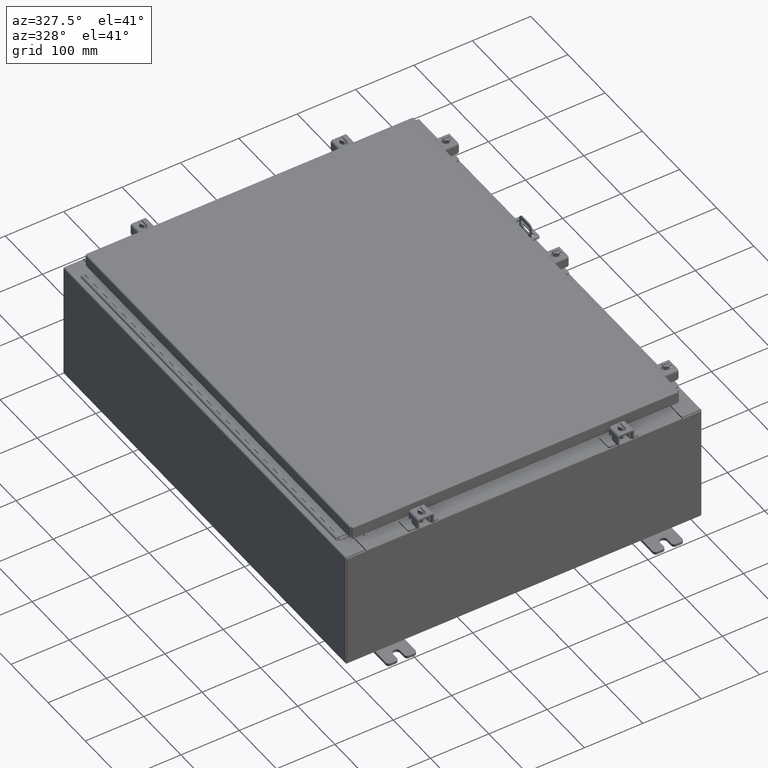
[diagram: clean part render]
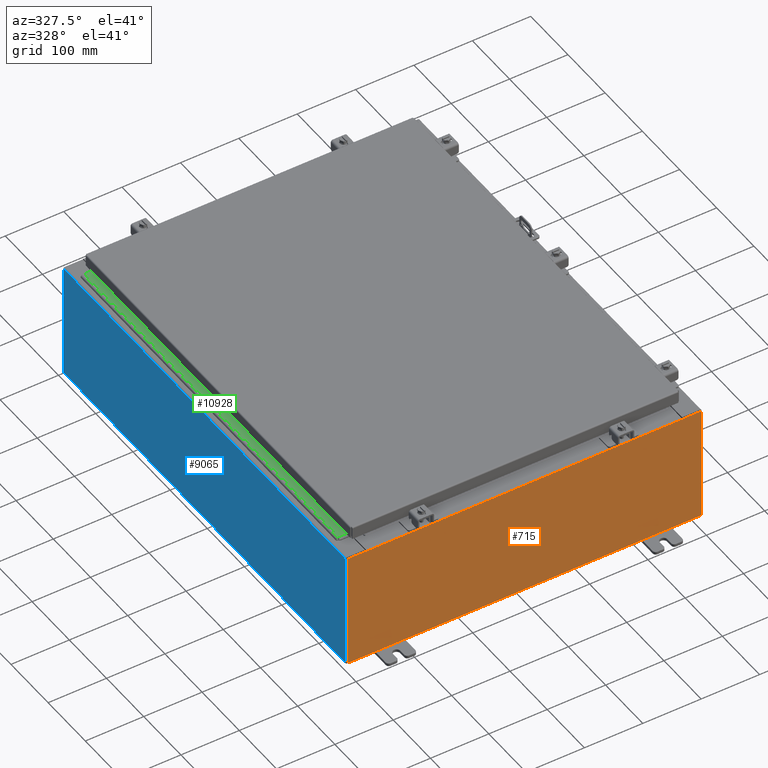
[diagram: same view with three faces highlighted in distinct colors, each labeled with its STEP entity id]
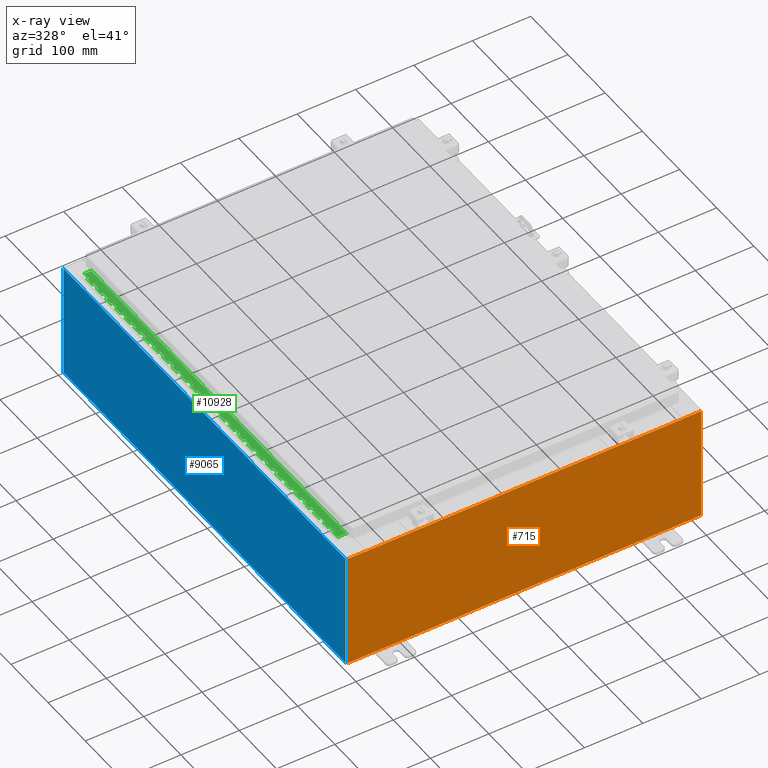
[diagram: x-ray of the same camera — body ghosted, the three highlighted faces saturated]
A machine part, auxiliary view with three faces highlighted in distinct colors.
The next image is the same camera in x-ray (body ghosted, the three faces saturated) — at least one of them is partly hidden behind the body in this view.
Their STEP definitions:

[orange] entity #715 — the highlighted planar face has unit normal (-0, 1, -0).
#212 = CARTESIAN_POINT ( 'NONE',  ( 11.92530000000000000, 0.0000000000000000000, 3.925299999999999600 ) ) ;
#236 = DIRECTION ( 'NONE',  ( 0.0000000000000000000, -1.000000000000000000, 0.0000000000000000000 ) ) ;
#589 = EDGE_CURVE ( 'NONE', #28736, #20325, #10232, .T. ) ;
#715 = ADVANCED_FACE ( 'NONE', ( #8394 ), #31891, .F. ) ;
#818 = EDGE_CURVE ( 'NONE', #31427, #25588, #19858, .T. ) ;
#1596 = DIRECTION ( 'NONE',  ( -1.000000000000000000, -0.0000000000000000000, -0.0000000000000000000 ) ) ;
#2315 = LINE ( 'NONE', #27511, #9162 ) ;
#2376 = LINE ( 'NONE', #16309, #16965 ) ;
#2477 = VECTOR ( 'NONE', #7870, 39.37007874015748100 ) ;
#2773 = EDGE_CURVE ( 'NONE', #28736, #31427, #2376, .T. ) ;
#3077 = EDGE_CURVE ( 'NONE', #32010, #27227, #6895, .T. ) ;
#3180 = CARTESIAN_POINT ( 'NONE',  ( -11.92530000000000000, 0.0000000000000000000, 3.925299999999999600 ) ) ;
#3248 = LINE ( 'NONE', #13152, #17825 ) ;
#3352 = ORIENTED_EDGE ( 'NONE', *, *, #23088, .T. ) ;
#4000 = ORIENTED_EDGE ( 'NONE', *, *, #13052, .T. ) ;
#4292 = VECTOR ( 'NONE', #30425, 39.37007874015748100 ) ;
#5203 = LINE ( 'NONE', #7295, #4292 ) ;
#5426 = ORIENTED_EDGE ( 'NONE', *, *, #14162, .F. ) ;
#5689 = DIRECTION ( 'NONE',  ( -4.340572780400004900E-014, 0.0000000000000000000, -1.000000000000000000 ) ) ;
#5823 = VERTEX_POINT ( 'NONE', #31015 ) ;
#6388 = AXIS2_PLACEMENT_3D ( 'NONE', #29812, #12526, #32707 ) ;
#6626 = VERTEX_POINT ( 'NONE', #33212 ) ;
#6895 = LINE ( 'NONE', #11107, #13729 ) ;
#7264 = DIRECTION ( 'NONE',  ( 1.000000000000000000, 0.0000000000000000000, 0.0000000000000000000 ) ) ;
#7295 = CARTESIAN_POINT ( 'NONE',  ( -11.92530000000000000, 0.0000000000000000000, 3.925299999999999600 ) ) ;
#7870 = DIRECTION ( 'NONE',  ( 1.000000000000000000, 0.0000000000000000000, 0.0000000000000000000 ) ) ;
#8150 = CARTESIAN_POINT ( 'NONE',  ( 10.67455000000000200, 0.0000000000000000000, 3.925299999999999600 ) ) ;
#8394 = FACE_OUTER_BOUND ( 'NONE', #25028, .T. ) ;
#8407 = VERTEX_POINT ( 'NONE', #30664 ) ;
#9162 = VECTOR ( 'NONE', #7264, 39.37007874015748100 ) ;
#9261 = ORIENTED_EDGE ( 'NONE', *, *, #3077, .T. ) ;
#9531 = EDGE_CURVE ( 'NONE', #15212, #32010, #5203, .T. ) ;
#10232 = LINE ( 'NONE', #3180, #2477 ) ;
#11107 = CARTESIAN_POINT ( 'NONE',  ( -11.92530000000000000, 0.0000000000000000000, 3.925299999999999600 ) ) ;
#11889 = CARTESIAN_POINT ( 'NONE',  ( 11.92530000000000000, 0.0000000000000000000, -3.925299999999999600 ) ) ;
#11911 = ORIENTED_EDGE ( 'NONE', *, *, #37037, .F. ) ;
#12526 = DIRECTION ( 'NONE',  ( -0.0000000000000000000, 1.000000000000000000, -0.0000000000000000000 ) ) ;
#12854 = AXIS2_PLACEMENT_3D ( 'NONE', #16561, #18073, #18030 ) ;
#13052 = EDGE_CURVE ( 'NONE', #32942, #6626, #2315, .T. ) ;
#13152 = CARTESIAN_POINT ( 'NONE',  ( -11.92530000000000000, 0.0000000000000000000, -3.925299999999999600 ) ) ;
#13370 = CARTESIAN_POINT ( 'NONE',  ( -10.67455000000000200, -0.0000000000000000000, 0.0000000000000000000 ) ) ;
#13729 = VECTOR ( 'NONE', #14145, 39.37007874015748100 ) ;
#13903 = ORIENTED_EDGE ( 'NONE', *, *, #818, .F. ) ;
#14145 = DIRECTION ( 'NONE',  ( 1.000000000000000000, 0.0000000000000000000, 0.0000000000000000000 ) ) ;
#14162 = EDGE_CURVE ( 'NONE', #8407, #5823, #28128, .T. ) ;
#15137 = ORIENTED_EDGE ( 'NONE', *, *, #9531, .T. ) ;
#15212 = VERTEX_POINT ( 'NONE', #29235 ) ;
#15738 = VERTEX_POINT ( 'NONE', #11889 ) ;
#15830 = VECTOR ( 'NONE', #17619, 39.37007874015748100 ) ;
#15946 = ORIENTED_EDGE ( 'NONE', *, *, #2773, .F. ) ;
#16189 = DIRECTION ( 'NONE',  ( 0.0000000000000000000, 0.0000000000000000000, 1.000000000000000000 ) ) ;
#16309 = CARTESIAN_POINT ( 'NONE',  ( 10.67454999999983300, -0.0000000000000000000, -4.633366117301815000E-013 ) ) ;
#16561 = CARTESIAN_POINT ( 'NONE',  ( 10.65587500000000200, 0.0000000000000000000, 3.874949999999999700 ) ) ;
#16965 = VECTOR ( 'NONE', #5689, 39.37007874015748100 ) ;
#17619 = DIRECTION ( 'NONE',  ( 0.0000000000000000000, 0.0000000000000000000, -1.000000000000000000 ) ) ;
#17825 = VECTOR ( 'NONE', #1596, 39.37007874015748100 ) ;
#17888 = LINE ( 'NONE', #26158, #33172 ) ;
#18030 = DIRECTION ( 'NONE',  ( 0.0000000000000000000, 0.0000000000000000000, -1.000000000000000000 ) ) ;
#18073 = DIRECTION ( 'NONE',  ( -0.0000000000000000000, 1.000000000000000000, -0.0000000000000000000 ) ) ;
#18451 = CARTESIAN_POINT ( 'NONE',  ( 10.63720000000000400, 0.0000000000000000000, 0.0000000000000000000 ) ) ;
#19181 = EDGE_CURVE ( 'NONE', #20325, #15738, #21729, .T. ) ;
#19513 = ORIENTED_EDGE ( 'NONE', *, *, #589, .T. ) ;
#19858 = CIRCLE ( 'NONE', #12854, 0.01867499999999949400 ) ;
#20325 = VERTEX_POINT ( 'NONE', #31217 ) ;
#21729 = LINE ( 'NONE', #212, #15830 ) ;
#22654 = CARTESIAN_POINT ( 'NONE',  ( -10.63720000000000400, 1.024442997624098700E-016, 3.912299999999999700 ) ) ;
#23088 = EDGE_CURVE ( 'NONE', #15738, #15212, #3248, .T. ) ;
#23303 = AXIS2_PLACEMENT_3D ( 'NONE', #29482, #236, #31510 ) ;
#23969 = ORIENTED_EDGE ( 'NONE', *, *, #30996, .F. ) ;
#24115 = DIRECTION ( 'NONE',  ( 0.0000000000000000000, 0.0000000000000000000, 1.000000000000000000 ) ) ;
#24175 = CARTESIAN_POINT ( 'NONE',  ( 10.63720000000000400, 0.0000000000000000000, 3.874949999999999700 ) ) ;
#24688 = LINE ( 'NONE', #13370, #31408 ) ;
#25028 = EDGE_LOOP ( 'NONE', ( #23969, #5426, #36553, #4000, #11911, #13903, #15946, #19513, #34512, #3352, #15137, #9261 ) ) ;
#25588 = VERTEX_POINT ( 'NONE', #24175 ) ;
#26158 = CARTESIAN_POINT ( 'NONE',  ( -10.63720000000000400, -0.0000000000000000000, 0.0000000000000000000 ) ) ;
#27227 = VERTEX_POINT ( 'NONE', #34585 ) ;
#27511 = CARTESIAN_POINT ( 'NONE',  ( -10.63720000000000400, 1.024442997624098700E-016, 3.912299999999999700 ) ) ;
#28128 = CIRCLE ( 'NONE', #6388, 0.01867499999999949400 ) ;
#28736 = VERTEX_POINT ( 'NONE', #8150 ) ;
#29027 = DIRECTION ( 'NONE',  ( 0.0000000000000000000, 0.0000000000000000000, -1.000000000000000000 ) ) ;
#29235 = CARTESIAN_POINT ( 'NONE',  ( -11.92530000000000000, 0.0000000000000000000, -3.925299999999999600 ) ) ;
#29482 = CARTESIAN_POINT ( 'NONE',  ( 0.0000000000000000000, 0.0000000000000000000, 0.0000000000000000000 ) ) ;
#29744 = CARTESIAN_POINT ( 'NONE',  ( 10.67455000000000200, 0.0000000000000000000, 3.874949999999999700 ) ) ;
#29812 = CARTESIAN_POINT ( 'NONE',  ( -10.65587500000000200, 0.0000000000000000000, 3.874949999999999700 ) ) ;
#30196 = CARTESIAN_POINT ( 'NONE',  ( -11.92530000000000000, 0.0000000000000000000, 3.925299999999999600 ) ) ;
#30425 = DIRECTION ( 'NONE',  ( -0.0000000000000000000, -0.0000000000000000000, 1.000000000000000000 ) ) ;
#30465 = VECTOR ( 'NONE', #24115, 39.37007874015748100 ) ;
#30664 = CARTESIAN_POINT ( 'NONE',  ( -10.63720000000000400, -0.0000000000000000000, 3.874949999999999700 ) ) ;
#30996 = EDGE_CURVE ( 'NONE', #5823, #27227, #24688, .T. ) ;
#31015 = CARTESIAN_POINT ( 'NONE',  ( -10.67455000000000200, 0.0000000000000000000, 3.874949999999999700 ) ) ;
#31217 = CARTESIAN_POINT ( 'NONE',  ( 11.92530000000000000, 0.0000000000000000000, 3.925299999999999600 ) ) ;
#31408 = VECTOR ( 'NONE', #16189, 39.37007874015748100 ) ;
#31427 = VERTEX_POINT ( 'NONE', #29744 ) ;
#31510 = DIRECTION ( 'NONE',  ( 0.0000000000000000000, -0.0000000000000000000, -1.000000000000000000 ) ) ;
#31891 = PLANE ( 'NONE',  #23303 ) ;
#32010 = VERTEX_POINT ( 'NONE', #30196 ) ;
#32707 = DIRECTION ( 'NONE',  ( 0.0000000000000000000, 0.0000000000000000000, -1.000000000000000000 ) ) ;
#32942 = VERTEX_POINT ( 'NONE', #22654 ) ;
#33172 = VECTOR ( 'NONE', #29027, 39.37007874015748100 ) ;
#33212 = CARTESIAN_POINT ( 'NONE',  ( 10.63720000000000400, 0.0000000000000000000, 3.912299999999999700 ) ) ;
#34512 = ORIENTED_EDGE ( 'NONE', *, *, #19181, .T. ) ;
#34585 = CARTESIAN_POINT ( 'NONE',  ( -10.67455000000000200, 0.0000000000000000000, 3.925299999999999600 ) ) ;
#36217 = EDGE_CURVE ( 'NONE', #32942, #8407, #17888, .T. ) ;
#36553 = ORIENTED_EDGE ( 'NONE', *, *, #36217, .F. ) ;
#37037 = EDGE_CURVE ( 'NONE', #25588, #6626, #37234, .T. ) ;
#37234 = LINE ( 'NONE', #18451, #30465 ) ;

[blue] entity #9065 — the highlighted planar face has unit normal (1, 0, 0).
#1745 = EDGE_LOOP ( 'NONE', ( #18598, #10446, #23943, #29497 ) ) ;
#3125 = DIRECTION ( 'NONE',  ( -0.0000000000000000000, 1.000000000000000000, -0.0000000000000000000 ) ) ;
#5172 = DIRECTION ( 'NONE',  ( 1.000000000000000000, 0.0000000000000000000, 3.584876173029202900E-015 ) ) ;
#5255 = DIRECTION ( 'NONE',  ( -3.584876173029202900E-015, 0.0000000000000000000, 1.000000000000000000 ) ) ;
#5877 = VECTOR ( 'NONE', #22986, 39.37007874015748100 ) ;
#7298 = CARTESIAN_POINT ( 'NONE',  ( -12.00000000000000500, 14.92530000000000000, -4.327932773236203200E-014 ) ) ;
#8998 = VECTOR ( 'NONE', #3125, 39.37007874015748100 ) ;
#9065 = ADVANCED_FACE ( 'NONE', ( #29220 ), #36887, .F. ) ;
#9746 = CARTESIAN_POINT ( 'NONE',  ( -12.00000000000003400, 14.92530000000000000, 7.837599999999999200 ) ) ;
#9902 = AXIS2_PLACEMENT_3D ( 'NONE', #10883, #5172, #25438 ) ;
#10446 = ORIENTED_EDGE ( 'NONE', *, *, #28531, .T. ) ;
#10883 = CARTESIAN_POINT ( 'NONE',  ( -12.00000000000000500, 0.0000000000000000000, -4.327932773236203200E-014 ) ) ;
#13900 = VERTEX_POINT ( 'NONE', #34461 ) ;
#14381 = VECTOR ( 'NONE', #5255, 39.37007874015748100 ) ;
#14521 = LINE ( 'NONE', #34393, #5877 ) ;
#15079 = EDGE_CURVE ( 'NONE', #13900, #22976, #14521, .T. ) ;
#16745 = LINE ( 'NONE', #34847, #8998 ) ;
#16970 = EDGE_CURVE ( 'NONE', #28670, #13900, #31530, .T. ) ;
#18363 = EDGE_CURVE ( 'NONE', #28670, #22646, #16745, .T. ) ;
#18598 = ORIENTED_EDGE ( 'NONE', *, *, #15079, .T. ) ;
#20055 = CARTESIAN_POINT ( 'NONE',  ( -12.00000000000000500, 14.92530000000000000, 0.01299999999999983600 ) ) ;
#21781 = DIRECTION ( 'NONE',  ( 3.584876173029202900E-015, 0.0000000000000000000, -1.000000000000000000 ) ) ;
#22646 = VERTEX_POINT ( 'NONE', #20055 ) ;
#22976 = VERTEX_POINT ( 'NONE', #9746 ) ;
#22986 = DIRECTION ( 'NONE',  ( 0.0000000000000000000, 1.000000000000000000, 0.0000000000000000000 ) ) ;
#23943 = ORIENTED_EDGE ( 'NONE', *, *, #18363, .F. ) ;
#25438 = DIRECTION ( 'NONE',  ( 3.584876173029202900E-015, 0.0000000000000000000, -1.000000000000000000 ) ) ;
#26646 = VECTOR ( 'NONE', #21781, 39.37007874015748100 ) ;
#27535 = LINE ( 'NONE', #7298, #26646 ) ;
#28531 = EDGE_CURVE ( 'NONE', #22976, #22646, #27535, .T. ) ;
#28670 = VERTEX_POINT ( 'NONE', #30917 ) ;
#29220 = FACE_OUTER_BOUND ( 'NONE', #1745, .T. ) ;
#29497 = ORIENTED_EDGE ( 'NONE', *, *, #16970, .T. ) ;
#30917 = CARTESIAN_POINT ( 'NONE',  ( -12.00000000000000500, -14.92530000000000000, 0.01299999999999984700 ) ) ;
#31298 = CARTESIAN_POINT ( 'NONE',  ( -12.00000000000000500, -14.92530000000000000, -4.327932773236203200E-014 ) ) ;
#31530 = LINE ( 'NONE', #31298, #14381 ) ;
#34393 = CARTESIAN_POINT ( 'NONE',  ( -12.00000000000003400, -14.92530000000000000, 7.837599999999999200 ) ) ;
#34461 = CARTESIAN_POINT ( 'NONE',  ( -12.00000000000003400, -14.92530000000000000, 7.837599999999999200 ) ) ;
#34847 = CARTESIAN_POINT ( 'NONE',  ( -12.00000000000000500, 14.92530000000000000, 0.01299999999999984700 ) ) ;
#36887 = PLANE ( 'NONE',  #9902 ) ;

[green] entity #10928 — the highlighted planar face has unit normal (-0, -0, 1).
#15 = LINE ( 'NONE', #11892, #29886 ) ;
#114 = CARTESIAN_POINT ( 'NONE',  ( -0.6869999999999982800, 0.5504999999999997700, -1.499999999999999800 ) ) ;
#197 = LINE ( 'NONE', #2545, #21551 ) ;
#222 = VERTEX_POINT ( 'NONE', #21553 ) ;
#253 = CARTESIAN_POINT ( 'NONE',  ( -0.6869999999999978300, 0.6754999999999996600, -27.00000000000000000 ) ) ;
#270 = CARTESIAN_POINT ( 'NONE',  ( -0.6869999999999982800, 0.5504999999999997700, -13.50000000000000000 ) ) ;
#378 = VECTOR ( 'NONE', #30265, 39.37007874015748100 ) ;
#387 = EDGE_CURVE ( 'NONE', #18146, #23255, #2956, .T. ) ;
#396 = ORIENTED_EDGE ( 'NONE', *, *, #25720, .F. ) ;
#411 = CARTESIAN_POINT ( 'NONE',  ( -0.6869999999999978300, 0.6754999999999996600, -19.00000000000000000 ) ) ;
#429 = CARTESIAN_POINT ( 'NONE',  ( -0.6869999999999978300, 0.6754999999999996600, -23.50000000000000000 ) ) ;
#562 = LINE ( 'NONE', #28814, #15121 ) ;
#582 = DIRECTION ( 'NONE',  ( 0.0000000000000000000, 0.0000000000000000000, 1.000000000000000000 ) ) ;
#627 = VERTEX_POINT ( 'NONE', #27587 ) ;
#667 = VERTEX_POINT ( 'NONE', #3924 ) ;
#700 = DIRECTION ( 'NONE',  ( 0.0000000000000000000, 0.0000000000000000000, 1.000000000000000000 ) ) ;
#701 = EDGE_CURVE ( 'NONE', #667, #9215, #22026, .T. ) ;
#737 = ORIENTED_EDGE ( 'NONE', *, *, #5421, .T. ) ;
#779 = DIRECTION ( 'NONE',  ( 0.0000000000000000000, 0.0000000000000000000, 1.000000000000000000 ) ) ;
#832 = DIRECTION ( 'NONE',  ( 0.0000000000000000000, -0.0000000000000000000, -1.000000000000000000 ) ) ;
#847 = ORIENTED_EDGE ( 'NONE', *, *, #4445, .F. ) ;
#862 = VERTEX_POINT ( 'NONE', #16641 ) ;
#923 = DIRECTION ( 'NONE',  ( -3.389037039080723100E-015, -1.000000000000000000, 0.0000000000000000000 ) ) ;
#975 = CARTESIAN_POINT ( 'NONE',  ( -0.6869999999999982800, 0.5504999999999997700, -7.000000000000000000 ) ) ;
#1001 = ORIENTED_EDGE ( 'NONE', *, *, #7525, .F. ) ;
#1013 = VECTOR ( 'NONE', #35746, 39.37007874015748100 ) ;
#1035 = LINE ( 'NONE', #7592, #7815 ) ;
#1120 = VECTOR ( 'NONE', #18836, 39.37007874015748100 ) ;
#1155 = VERTEX_POINT ( 'NONE', #3341 ) ;
#1207 = VECTOR ( 'NONE', #1882, 39.37007874015748100 ) ;
#1234 = VERTEX_POINT ( 'NONE', #36885 ) ;
#1322 = EDGE_CURVE ( 'NONE', #4029, #35561, #11146, .T. ) ;
#1379 = CARTESIAN_POINT ( 'NONE',  ( -0.6869999999999973900, 0.8004999999999995500, -1.499999999999999800 ) ) ;
#1386 = CARTESIAN_POINT ( 'NONE',  ( -0.6869999999999978300, 0.6754999999999996600, -27.00000000000000000 ) ) ;
#1387 = DIRECTION ( 'NONE',  ( 0.0000000000000000000, -0.0000000000000000000, -1.000000000000000000 ) ) ;
#1512 = ORIENTED_EDGE ( 'NONE', *, *, #13712, .F. ) ;
#1532 = VERTEX_POINT ( 'NONE', #35976 ) ;
#1672 = ORIENTED_EDGE ( 'NONE', *, *, #29464, .F. ) ;
#1834 = EDGE_CURVE ( 'NONE', #1234, #35139, #23812, .T. ) ;
#1848 = VECTOR ( 'NONE', #20261, 39.37007874015748100 ) ;
#1882 = DIRECTION ( 'NONE',  ( 3.389037039080723100E-015, 1.000000000000000000, -0.0000000000000000000 ) ) ;
#1966 = CARTESIAN_POINT ( 'NONE',  ( -0.6869999999999978300, 0.6754999999999996600, -27.00000000000000000 ) ) ;
#2005 = LINE ( 'NONE', #29370, #17508 ) ;
#2032 = ORIENTED_EDGE ( 'NONE', *, *, #25458, .F. ) ;
#2050 = LINE ( 'NONE', #32903, #32838 ) ;
#2121 = EDGE_CURVE ( 'NONE', #627, #21296, #197, .T. ) ;
#2167 = DIRECTION ( 'NONE',  ( -3.389037039080723100E-015, -1.000000000000000000, 0.0000000000000000000 ) ) ;
#2168 = CARTESIAN_POINT ( 'NONE',  ( -0.6869999999999982800, 0.5504999999999997700, -18.50000000000000000 ) ) ;
#2249 = VERTEX_POINT ( 'NONE', #32317 ) ;
#2255 = ORIENTED_EDGE ( 'NONE', *, *, #2121, .F. ) ;
#2365 = CARTESIAN_POINT ( 'NONE',  ( -0.6869999999999978300, 0.6754999999999996600, -27.00000000000000000 ) ) ;
#2368 = DIRECTION ( 'NONE',  ( 0.0000000000000000000, -0.0000000000000000000, -1.000000000000000000 ) ) ;
#2397 = CARTESIAN_POINT ( 'NONE',  ( -0.6869999999999982800, 0.5504999999999997700, -1.000000000000000000 ) ) ;
#2415 = LINE ( 'NONE', #27691, #24682 ) ;
#2482 = LINE ( 'NONE', #24233, #25640 ) ;
#2487 = DIRECTION ( 'NONE',  ( 0.0000000000000000000, -0.0000000000000000000, -1.000000000000000000 ) ) ;
#2536 = DIRECTION ( 'NONE',  ( 0.0000000000000000000, 0.0000000000000000000, 1.000000000000000000 ) ) ;
#2545 = CARTESIAN_POINT ( 'NONE',  ( -0.6869999999999982800, 0.5504999999999997700, -23.50000000000000000 ) ) ;
#2548 = EDGE_CURVE ( 'NONE', #7204, #6070, #33633, .T. ) ;
#2562 = VERTEX_POINT ( 'NONE', #34290 ) ;
#2622 = VERTEX_POINT ( 'NONE', #8086 ) ;
#2639 = CARTESIAN_POINT ( 'NONE',  ( -0.6869999999999973900, 0.8004999999999995500, -16.50000000000000000 ) ) ;
#2646 = CARTESIAN_POINT ( 'NONE',  ( -0.6869999999999982800, 0.5504999999999997700, -10.50000000000000000 ) ) ;
#2729 = DIRECTION ( 'NONE',  ( -3.389037039080723100E-015, -1.000000000000000000, 0.0000000000000000000 ) ) ;
#2769 = ORIENTED_EDGE ( 'NONE', *, *, #4908, .F. ) ;
#2782 = DIRECTION ( 'NONE',  ( 0.0000000000000000000, -0.0000000000000000000, -1.000000000000000000 ) ) ;
#2804 = CARTESIAN_POINT ( 'NONE',  ( -0.6869999999999998300, 0.07549999999999991400, -27.00000000000000000 ) ) ;
#2809 = ORIENTED_EDGE ( 'NONE', *, *, #26552, .F. ) ;
#2826 = CARTESIAN_POINT ( 'NONE',  ( -0.6869999999999973900, 0.8004999999999995500, -21.50000000000000400 ) ) ;
#2900 = EDGE_CURVE ( 'NONE', #21949, #11391, #13297, .T. ) ;
#2956 = LINE ( 'NONE', #25321, #8876 ) ;
#2970 = VERTEX_POINT ( 'NONE', #13745 ) ;
#3103 = DIRECTION ( 'NONE',  ( -3.389037039080723100E-015, -1.000000000000000000, 0.0000000000000000000 ) ) ;
#3228 = VERTEX_POINT ( 'NONE', #30787 ) ;
#3341 = CARTESIAN_POINT ( 'NONE',  ( -0.6869999999999982800, 0.5504999999999997700, -4.500000000000000000 ) ) ;
#3358 = VECTOR ( 'NONE', #24588, 39.37007874015748100 ) ;
#3442 = CARTESIAN_POINT ( 'NONE',  ( -0.6869999999999978300, 0.6754999999999996600, -16.00000000000000000 ) ) ;
#3455 = DIRECTION ( 'NONE',  ( -3.389037039080723100E-015, -1.000000000000000000, 0.0000000000000000000 ) ) ;
#3493 = VECTOR ( 'NONE', #33708, 39.37007874015748100 ) ;
#3517 = CARTESIAN_POINT ( 'NONE',  ( -0.6869999999999982800, 0.5504999999999997700, -16.00000000000000000 ) ) ;
#3595 = DIRECTION ( 'NONE',  ( 0.0000000000000000000, 0.0000000000000000000, 1.000000000000000000 ) ) ;
#3601 = CARTESIAN_POINT ( 'NONE',  ( -0.6869999999999973900, 0.8004999999999995500, -13.50000000000000000 ) ) ;
#3606 = CARTESIAN_POINT ( 'NONE',  ( -0.6869999999999982800, 0.5504999999999997700, -14.49999999999999800 ) ) ;
#3636 = VECTOR ( 'NONE', #16660, 39.37007874015748100 ) ;
#3657 = VECTOR ( 'NONE', #22066, 39.37007874015748100 ) ;
#3672 = LINE ( 'NONE', #9267, #25877 ) ;
#3777 = CARTESIAN_POINT ( 'NONE',  ( -0.6869999999999982800, 0.5504999999999997700, -22.00000000000000000 ) ) ;
#3779 = VERTEX_POINT ( 'NONE', #26124 ) ;
#3851 = CARTESIAN_POINT ( 'NONE',  ( -0.6869999999999973900, 0.8004999999999995500, -20.00000000000000000 ) ) ;
#3858 = LINE ( 'NONE', #27677, #7918 ) ;
#3899 = LINE ( 'NONE', #31859, #32851 ) ;
#3905 = EDGE_CURVE ( 'NONE', #24909, #11391, #11398, .T. ) ;
#3909 = ORIENTED_EDGE ( 'NONE', *, *, #1322, .F. ) ;
#3924 = CARTESIAN_POINT ( 'NONE',  ( -0.6869999999999978300, 0.6754999999999996600, -15.50000000000000000 ) ) ;
#3928 = EDGE_CURVE ( 'NONE', #14172, #31490, #31714, .T. ) ;
#3933 = LINE ( 'NONE', #18458, #18513 ) ;
#3945 = ORIENTED_EDGE ( 'NONE', *, *, #11162, .F. ) ;
#4019 = VERTEX_POINT ( 'NONE', #29883 ) ;
#4029 = VERTEX_POINT ( 'NONE', #29757 ) ;
#4072 = CARTESIAN_POINT ( 'NONE',  ( -0.6869999999999982800, 0.5504999999999997700, -10.00000000000000000 ) ) ;
#4077 = CARTESIAN_POINT ( 'NONE',  ( -0.6869999999999982800, 0.5504999999999997700, -5.500000000000000000 ) ) ;
#4118 = CARTESIAN_POINT ( 'NONE',  ( -0.6869999999999973900, 0.8004999999999995500, -2.000000000000000000 ) ) ;
#4141 = VERTEX_POINT ( 'NONE', #10907 ) ;
#4186 = DIRECTION ( 'NONE',  ( 3.369016658928398200E-015, 1.000000000000000000, 0.0000000000000000000 ) ) ;
#4210 = ORIENTED_EDGE ( 'NONE', *, *, #15068, .T. ) ;
#4252 = ORIENTED_EDGE ( 'NONE', *, *, #13215, .F. ) ;
#4320 = EDGE_CURVE ( 'NONE', #1155, #22660, #11360, .T. ) ;
#4335 = VERTEX_POINT ( 'NONE', #11043 ) ;
#4381 = VERTEX_POINT ( 'NONE', #13714 ) ;
#4401 = VERTEX_POINT ( 'NONE', #33892 ) ;
#4445 = EDGE_CURVE ( 'NONE', #5668, #5144, #15, .T. ) ;
#4484 = CARTESIAN_POINT ( 'NONE',  ( -0.6869999999999982800, 0.5504999999999997700, -12.49999999999999800 ) ) ;
#4586 = VECTOR ( 'NONE', #31505, 39.37007874015748100 ) ;
#4594 = ORIENTED_EDGE ( 'NONE', *, *, #10994, .T. ) ;
#4619 = CARTESIAN_POINT ( 'NONE',  ( -0.6869999999999978300, 0.6754999999999996600, -14.00000000000000000 ) ) ;
#4645 = LINE ( 'NONE', #10337, #27742 ) ;
#4661 = ORIENTED_EDGE ( 'NONE', *, *, #29413, .F. ) ;
#4673 = DIRECTION ( 'NONE',  ( 3.389037039080723100E-015, 1.000000000000000000, -0.0000000000000000000 ) ) ;
#4794 = VECTOR ( 'NONE', #23077, 39.37007874015748100 ) ;
#4851 = EDGE_CURVE ( 'NONE', #37283, #31284, #30861, .T. ) ;
#4908 = EDGE_CURVE ( 'NONE', #18146, #23981, #14645, .T. ) ;
#4991 = DIRECTION ( 'NONE',  ( 0.0000000000000000000, -0.0000000000000000000, -1.000000000000000000 ) ) ;
#5091 = CARTESIAN_POINT ( 'NONE',  ( -0.6869999999999982800, 0.5504999999999997700, -12.99999999999999800 ) ) ;
#5092 = VECTOR ( 'NONE', #33863, 39.37007874015748100 ) ;
#5123 = LINE ( 'NONE', #26556, #34067 ) ;
#5144 = VERTEX_POINT ( 'NONE', #10125 ) ;
#5219 = VERTEX_POINT ( 'NONE', #36134 ) ;
#5254 = CARTESIAN_POINT ( 'NONE',  ( -0.6869999999999982800, 0.5504999999999997700, -11.50000000000000000 ) ) ;
#5274 = DIRECTION ( 'NONE',  ( 1.000000000000000000, -3.369016658928398200E-015, 0.0000000000000000000 ) ) ;
#5283 = VERTEX_POINT ( 'NONE', #23791 ) ;
#5336 = CARTESIAN_POINT ( 'NONE',  ( -0.6869999999999973900, 0.8004999999999995500, -26.00000000000000000 ) ) ;
#5371 = EDGE_CURVE ( 'NONE', #862, #5219, #29944, .T. ) ;
#5402 = CARTESIAN_POINT ( 'NONE',  ( -0.6869999999999978300, 0.6754999999999996600, -6.499999999999999100 ) ) ;
#5404 = EDGE_CURVE ( 'NONE', #35139, #4029, #14603, .T. ) ;
#5421 = EDGE_CURVE ( 'NONE', #1532, #21795, #29025, .T. ) ;
#5444 = CARTESIAN_POINT ( 'NONE',  ( -0.6869999999999973900, 0.8004999999999995500, -7.000000000000000000 ) ) ;
#5456 = EDGE_CURVE ( 'NONE', #32645, #10293, #20514, .T. ) ;
#5477 = CARTESIAN_POINT ( 'NONE',  ( -0.6869999999999982800, 0.5504999999999997700, -17.00000000000000000 ) ) ;
#5522 = EDGE_CURVE ( 'NONE', #9282, #22959, #32177, .T. ) ;
#5560 = ORIENTED_EDGE ( 'NONE', *, *, #14653, .T. ) ;
#5576 = DIRECTION ( 'NONE',  ( -3.389037039080723100E-015, -1.000000000000000000, 0.0000000000000000000 ) ) ;
#5613 = DIRECTION ( 'NONE',  ( 0.0000000000000000000, 0.0000000000000000000, 1.000000000000000000 ) ) ;
#5645 = CARTESIAN_POINT ( 'NONE',  ( -0.6869999999999982800, 0.5504999999999997700, -10.50000000000000000 ) ) ;
#5668 = VERTEX_POINT ( 'NONE', #14678 ) ;
#5692 = EDGE_CURVE ( 'NONE', #19662, #26148, #13210, .T. ) ;
#5783 = ORIENTED_EDGE ( 'NONE', *, *, #31315, .F. ) ;
#5798 = CARTESIAN_POINT ( 'NONE',  ( -0.6869999999999982800, 0.5504999999999997700, -20.50000000000000400 ) ) ;
#5828 = CARTESIAN_POINT ( 'NONE',  ( -0.6869999999999978300, 0.6754999999999996600, -8.000000000000000000 ) ) ;
#6030 = LINE ( 'NONE', #31555, #28215 ) ;
#6054 = CARTESIAN_POINT ( 'NONE',  ( -0.6869999999999982800, 0.5504999999999997700, -14.00000000000000000 ) ) ;
#6070 = VERTEX_POINT ( 'NONE', #5477 ) ;
#6074 = VECTOR ( 'NONE', #17040, 39.37007874015748100 ) ;
#6084 = CARTESIAN_POINT ( 'NONE',  ( -0.6870000000000022800, -0.6245000000000003900, 0.0000000000000000000 ) ) ;
#6205 = LINE ( 'NONE', #2646, #33347 ) ;
#6213 = VERTEX_POINT ( 'NONE', #14472 ) ;
#6217 = CARTESIAN_POINT ( 'NONE',  ( -0.6869999999999973900, 0.8004999999999995500, -5.500000000000000000 ) ) ;
#6219 = DIRECTION ( 'NONE',  ( 0.0000000000000000000, -0.0000000000000000000, -1.000000000000000000 ) ) ;
#6328 = ORIENTED_EDGE ( 'NONE', *, *, #17923, .T. ) ;
#6433 = LINE ( 'NONE', #12483, #35374 ) ;
#6463 = ORIENTED_EDGE ( 'NONE', *, *, #27853, .F. ) ;
#6526 = DIRECTION ( 'NONE',  ( 0.0000000000000000000, 0.0000000000000000000, 1.000000000000000000 ) ) ;
#6780 = VECTOR ( 'NONE', #2536, 39.37007874015748100 ) ;
#6835 = CARTESIAN_POINT ( 'NONE',  ( -0.6869999999999973900, 0.8004999999999995500, -24.50000000000000000 ) ) ;
#6847 = VECTOR ( 'NONE', #15852, 39.37007874015748100 ) ;
#7035 = DIRECTION ( 'NONE',  ( 3.389037039080723100E-015, 1.000000000000000000, -0.0000000000000000000 ) ) ;
#7053 = VECTOR ( 'NONE', #24629, 39.37007874015748100 ) ;
#7096 = LINE ( 'NONE', #23226, #34218 ) ;
#7131 = CARTESIAN_POINT ( 'NONE',  ( -0.6869999999999982800, 0.5504999999999997700, -19.50000000000000000 ) ) ;
#7204 = VERTEX_POINT ( 'NONE', #8555 ) ;
#7275 = CARTESIAN_POINT ( 'NONE',  ( -0.6869999999999982800, 0.5504999999999997700, -2.500000000000000000 ) ) ;
#7322 = ORIENTED_EDGE ( 'NONE', *, *, #21581, .F. ) ;
#7331 = LINE ( 'NONE', #5336, #20972 ) ;
#7341 = ORIENTED_EDGE ( 'NONE', *, *, #18885, .F. ) ;
#7391 = LINE ( 'NONE', #6835, #36331 ) ;
#7433 = EDGE_CURVE ( 'NONE', #31866, #37211, #10798, .T. ) ;
#7464 = DIRECTION ( 'NONE',  ( 0.0000000000000000000, 0.0000000000000000000, 1.000000000000000000 ) ) ;
#7500 = VECTOR ( 'NONE', #36998, 39.37007874015748100 ) ;
#7525 = EDGE_CURVE ( 'NONE', #13328, #16492, #8054, .T. ) ;
#7564 = DIRECTION ( 'NONE',  ( 0.0000000000000000000, -0.0000000000000000000, -1.000000000000000000 ) ) ;
#7576 = ORIENTED_EDGE ( 'NONE', *, *, #31400, .T. ) ;
#7592 = CARTESIAN_POINT ( 'NONE',  ( -0.6869999999999973900, 0.8004999999999995500, -8.000000000000000000 ) ) ;
#7595 = VECTOR ( 'NONE', #13146, 39.37007874015748100 ) ;
#7681 = VERTEX_POINT ( 'NONE', #26149 ) ;
#7771 = CARTESIAN_POINT ( 'NONE',  ( -0.6869999999999973900, 0.8004999999999995500, -2.999999999999999600 ) ) ;
#7790 = VECTOR ( 'NONE', #32559, 39.37007874015748100 ) ;
#7801 = VERTEX_POINT ( 'NONE', #20264 ) ;
#7815 = VECTOR ( 'NONE', #4673, 39.37007874015748100 ) ;
#7867 = CARTESIAN_POINT ( 'NONE',  ( -0.6869999999999978300, 0.6754999999999996600, -27.00000000000000000 ) ) ;
#7897 = ORIENTED_EDGE ( 'NONE', *, *, #13882, .T. ) ;
#7918 = VECTOR ( 'NONE', #19164, 39.37007874015748100 ) ;
#7921 = CARTESIAN_POINT ( 'NONE',  ( -0.6869999999999978300, 0.6754999999999996600, -27.00000000000000000 ) ) ;
#7941 = LINE ( 'NONE', #21617, #7053 ) ;
#7971 = ORIENTED_EDGE ( 'NONE', *, *, #21819, .F. ) ;
#7975 = LINE ( 'NONE', #20996, #31056 ) ;
#8017 = DIRECTION ( 'NONE',  ( 3.389037039080723100E-015, 1.000000000000000000, -0.0000000000000000000 ) ) ;
#8054 = LINE ( 'NONE', #30631, #378 ) ;
#8086 = CARTESIAN_POINT ( 'NONE',  ( -0.6869999999999982800, 0.5504999999999997700, -8.000000000000000000 ) ) ;
#8100 = VECTOR ( 'NONE', #22069, 39.37007874015748100 ) ;
#8128 = EDGE_CURVE ( 'NONE', #19524, #33974, #13036, .T. ) ;
#8183 = EDGE_CURVE ( 'NONE', #12725, #14172, #6205, .T. ) ;
#8238 = EDGE_CURVE ( 'NONE', #23758, #6213, #17146, .T. ) ;
#8339 = CARTESIAN_POINT ( 'NONE',  ( -0.6869999999999978300, 0.6754999999999996600, -27.00000000000000000 ) ) ;
#8439 = DIRECTION ( 'NONE',  ( 0.0000000000000000000, 0.0000000000000000000, 1.000000000000000000 ) ) ;
#8553 = ORIENTED_EDGE ( 'NONE', *, *, #20456, .F. ) ;
#8555 = CARTESIAN_POINT ( 'NONE',  ( -0.6869999999999982800, 0.5504999999999997700, -16.50000000000000000 ) ) ;
#8689 = CARTESIAN_POINT ( 'NONE',  ( -0.6869999999999982800, 0.5504999999999997700, -16.50000000000000000 ) ) ;
#8691 = CARTESIAN_POINT ( 'NONE',  ( -0.6869999999999982800, 0.5504999999999997700, -21.50000000000000400 ) ) ;
#8707 = VECTOR ( 'NONE', #12404, 39.37007874015748100 ) ;
#8725 = VERTEX_POINT ( 'NONE', #429 ) ;
#8760 = ORIENTED_EDGE ( 'NONE', *, *, #2900, .F. ) ;
#8847 = VECTOR ( 'NONE', #18270, 39.37007874015748100 ) ;
#8876 = VECTOR ( 'NONE', #25447, 39.37007874015748100 ) ;
#8913 = EDGE_CURVE ( 'NONE', #33935, #3228, #2050, .T. ) ;
#8927 = VECTOR ( 'NONE', #30120, 39.37007874015748100 ) ;
#8972 = EDGE_CURVE ( 'NONE', #7681, #31490, #7941, .T. ) ;
#9041 = LINE ( 'NONE', #30600, #8100 ) ;
#9215 = VERTEX_POINT ( 'NONE', #31835 ) ;
#9267 = CARTESIAN_POINT ( 'NONE',  ( -0.6869999999999982800, 0.5504999999999997700, -7.499999999999999100 ) ) ;
#9278 = VERTEX_POINT ( 'NONE', #26438 ) ;
#9282 = VERTEX_POINT ( 'NONE', #29305 ) ;
#9289 = ORIENTED_EDGE ( 'NONE', *, *, #37127, .T. ) ;
#9300 = VECTOR ( 'NONE', #19815, 39.37007874015748100 ) ;
#9311 = CARTESIAN_POINT ( 'NONE',  ( -0.6869999999999982800, 0.5504999999999997700, -2.999999999999999600 ) ) ;
#9388 = EDGE_CURVE ( 'NONE', #9215, #30112, #16605, .T. ) ;
#9400 = ORIENTED_EDGE ( 'NONE', *, *, #18744, .F. ) ;
#9506 = DIRECTION ( 'NONE',  ( 0.0000000000000000000, 0.0000000000000000000, 1.000000000000000000 ) ) ;
#9536 = EDGE_CURVE ( 'NONE', #14763, #21949, #26508, .T. ) ;
#9665 = VERTEX_POINT ( 'NONE', #22253 ) ;
#9668 = EDGE_CURVE ( 'NONE', #24632, #21795, #22897, .T. ) ;
#9697 = VECTOR ( 'NONE', #19448, 39.37007874015748100 ) ;
#9725 = ORIENTED_EDGE ( 'NONE', *, *, #23045, .F. ) ;
#9827 = CARTESIAN_POINT ( 'NONE',  ( -0.6869999999999978300, 0.6754999999999996600, -17.50000000000000000 ) ) ;
#9963 = ORIENTED_EDGE ( 'NONE', *, *, #31544, .T. ) ;
#9993 = LINE ( 'NONE', #6084, #32125 ) ;
#10001 = EDGE_CURVE ( 'NONE', #26465, #35060, #12901, .T. ) ;
#10032 = ORIENTED_EDGE ( 'NONE', *, *, #25633, .F. ) ;
#10081 = ORIENTED_EDGE ( 'NONE', *, *, #30294, .F. ) ;
#10093 = VECTOR ( 'NONE', #34358, 39.37007874015748100 ) ;
#10125 = CARTESIAN_POINT ( 'NONE',  ( -0.6869999999999982800, 0.5504999999999997700, -17.99999999999999600 ) ) ;
#10293 = VERTEX_POINT ( 'NONE', #3777 ) ;
#10329 = VERTEX_POINT ( 'NONE', #32857 ) ;
#10337 = CARTESIAN_POINT ( 'NONE',  ( -0.6869999999999982800, 0.5504999999999997700, -19.50000000000000000 ) ) ;
#10367 = CARTESIAN_POINT ( 'NONE',  ( -0.6869999999999978300, 0.6754999999999996600, -27.00000000000000000 ) ) ;
#10448 = CARTESIAN_POINT ( 'NONE',  ( -0.6869999999999982800, 0.5504999999999997700, -11.50000000000000000 ) ) ;
#10530 = ORIENTED_EDGE ( 'NONE', *, *, #22925, .T. ) ;
#10617 = CARTESIAN_POINT ( 'NONE',  ( -0.6869999999999973900, 0.8004999999999995500, -24.99999999999999600 ) ) ;
#10642 = EDGE_CURVE ( 'NONE', #4141, #4401, #30456, .T. ) ;
#10798 = LINE ( 'NONE', #33536, #25301 ) ;
#10846 = VECTOR ( 'NONE', #33256, 39.37007874015748100 ) ;
#10907 = CARTESIAN_POINT ( 'NONE',  ( -0.6869999999999978300, 0.6754999999999996600, -26.50000000000000400 ) ) ;
#10928 = ADVANCED_FACE ( 'NONE', ( #14251 ), #22528, .T. ) ;
#10930 = VERTEX_POINT ( 'NONE', #37003 ) ;
#10935 = CARTESIAN_POINT ( 'NONE',  ( -0.6869999999999978300, 0.6754999999999996600, -22.00000000000000000 ) ) ;
#10944 = DIRECTION ( 'NONE',  ( 3.389037039080723100E-015, 1.000000000000000000, -0.0000000000000000000 ) ) ;
#10956 = VECTOR ( 'NONE', #25722, 39.37007874015748100 ) ;
#10994 = EDGE_CURVE ( 'NONE', #30847, #12649, #27787, .T. ) ;
#11016 = ORIENTED_EDGE ( 'NONE', *, *, #35632, .F. ) ;
#11040 = LINE ( 'NONE', #18017, #25529 ) ;
#11043 = CARTESIAN_POINT ( 'NONE',  ( -0.6869999999999978300, 0.6754999999999996600, -5.500000000000000000 ) ) ;
#11121 = CARTESIAN_POINT ( 'NONE',  ( -0.6869999999999978300, 0.6754999999999996600, -17.00000000000000000 ) ) ;
#11146 = LINE ( 'NONE', #17976, #34182 ) ;
#11154 = VERTEX_POINT ( 'NONE', #2168 ) ;
#11162 = EDGE_CURVE ( 'NONE', #5144, #4019, #36801, .T. ) ;
#11170 = CARTESIAN_POINT ( 'NONE',  ( -0.6869999999999978300, 0.6754999999999996600, -27.00000000000000000 ) ) ;
#11360 = LINE ( 'NONE', #25345, #3636 ) ;
#11391 = VERTEX_POINT ( 'NONE', #15023 ) ;
#11398 = LINE ( 'NONE', #14900, #18256 ) ;
#11406 = ORIENTED_EDGE ( 'NONE', *, *, #36144, .T. ) ;
#11414 = EDGE_CURVE ( 'NONE', #9278, #19662, #2005, .T. ) ;
#11466 = LINE ( 'NONE', #3851, #25956 ) ;
#11686 = LINE ( 'NONE', #34326, #33806 ) ;
#11874 = VECTOR ( 'NONE', #36116, 39.37007874015748100 ) ;
#11892 = CARTESIAN_POINT ( 'NONE',  ( -0.6869999999999982800, 0.5504999999999997700, -17.50000000000000000 ) ) ;
#11987 = LINE ( 'NONE', #1379, #3358 ) ;
#11996 = LINE ( 'NONE', #31629, #18852 ) ;
#12293 = CARTESIAN_POINT ( 'NONE',  ( -0.6869999999999982800, 0.5504999999999997700, -22.50000000000000000 ) ) ;
#12404 = DIRECTION ( 'NONE',  ( 0.0000000000000000000, 0.0000000000000000000, 1.000000000000000000 ) ) ;
#12410 = ORIENTED_EDGE ( 'NONE', *, *, #5404, .F. ) ;
#12436 = VECTOR ( 'NONE', #23435, 39.37007874015748100 ) ;
#12439 = LINE ( 'NONE', #27628, #26007 ) ;
#12481 = CARTESIAN_POINT ( 'NONE',  ( -0.6869999999999973900, 0.8004999999999995500, -19.50000000000000000 ) ) ;
#12483 = CARTESIAN_POINT ( 'NONE',  ( -0.6869999999999982800, 0.5504999999999997700, -8.500000000000000000 ) ) ;
#12573 = DIRECTION ( 'NONE',  ( 0.0000000000000000000, 0.0000000000000000000, 1.000000000000000000 ) ) ;
#12649 = VERTEX_POINT ( 'NONE', #11121 ) ;
#12660 = CARTESIAN_POINT ( 'NONE',  ( -0.6869999999999978300, 0.6754999999999996600, -16.50000000000000000 ) ) ;
#12720 = LINE ( 'NONE', #7867, #35740 ) ;
#12725 = VERTEX_POINT ( 'NONE', #5645 ) ;
#12726 = DIRECTION ( 'NONE',  ( 3.389037039080723100E-015, 1.000000000000000000, -0.0000000000000000000 ) ) ;
#12742 = VERTEX_POINT ( 'NONE', #25905 ) ;
#12866 = CARTESIAN_POINT ( 'NONE',  ( -0.6869999999999982800, 0.5504999999999997700, -23.99999999999999600 ) ) ;
#12882 = EDGE_CURVE ( 'NONE', #24909, #13328, #23256, .T. ) ;
#12900 = VECTOR ( 'NONE', #32658, 39.37007874015748100 ) ;
#12901 = LINE ( 'NONE', #11170, #6074 ) ;
#12943 = VECTOR ( 'NONE', #19413, 39.37007874015748100 ) ;
#12952 = CARTESIAN_POINT ( 'NONE',  ( -0.6869999999999978300, 0.6754999999999996600, -27.00000000000000000 ) ) ;
#13036 = LINE ( 'NONE', #5254, #36064 ) ;
#13042 = ORIENTED_EDGE ( 'NONE', *, *, #19304, .T. ) ;
#13066 = CARTESIAN_POINT ( 'NONE',  ( -0.6869999999999973900, 0.8004999999999995500, -14.49999999999999800 ) ) ;
#13132 = LINE ( 'NONE', #31502, #37053 ) ;
#13146 = DIRECTION ( 'NONE',  ( 3.389037039080723100E-015, 1.000000000000000000, -0.0000000000000000000 ) ) ;
#13151 = EDGE_CURVE ( 'NONE', #26667, #25871, #7331, .T. ) ;
#13210 = LINE ( 'NONE', #7275, #28568 ) ;
#13215 = EDGE_CURVE ( 'NONE', #19108, #22960, #35360, .T. ) ;
#13297 = LINE ( 'NONE', #19983, #26858 ) ;
#13323 = CARTESIAN_POINT ( 'NONE',  ( -0.6869999999999978300, 0.6754999999999996600, -11.99999999999999800 ) ) ;
#13328 = VERTEX_POINT ( 'NONE', #270 ) ;
#13440 = CARTESIAN_POINT ( 'NONE',  ( -0.6869999999999978300, 0.6754999999999996600, -0.5000000000000000000 ) ) ;
#13638 = LINE ( 'NONE', #29657, #28988 ) ;
#13666 = ORIENTED_EDGE ( 'NONE', *, *, #8972, .T. ) ;
#13712 = EDGE_CURVE ( 'NONE', #8725, #627, #26772, .T. ) ;
#13714 = CARTESIAN_POINT ( 'NONE',  ( -0.6869999999999982800, 0.5504999999999997700, -6.000000000000000900 ) ) ;
#13745 = CARTESIAN_POINT ( 'NONE',  ( -0.6869999999999978300, 0.6754999999999996600, -6.000000000000000900 ) ) ;
#13799 = DIRECTION ( 'NONE',  ( 0.0000000000000000000, 0.0000000000000000000, 1.000000000000000000 ) ) ;
#13859 = LINE ( 'NONE', #1966, #12943 ) ;
#13882 = EDGE_CURVE ( 'NONE', #4141, #25871, #36667, .T. ) ;
#13925 = CARTESIAN_POINT ( 'NONE',  ( -0.6870000000000022800, -0.6245000000000003900, -27.00000000000000000 ) ) ;
#13945 = VECTOR ( 'NONE', #5613, 39.37007874015748100 ) ;
#14075 = LINE ( 'NONE', #18439, #20896 ) ;
#14102 = DIRECTION ( 'NONE',  ( 3.389037039080723100E-015, 1.000000000000000000, -0.0000000000000000000 ) ) ;
#14147 = ORIENTED_EDGE ( 'NONE', *, *, #27860, .F. ) ;
#14172 = VERTEX_POINT ( 'NONE', #26927 ) ;
#14198 = CARTESIAN_POINT ( 'NONE',  ( -0.6869999999999982800, 0.5504999999999997700, -24.50000000000000000 ) ) ;
#14208 = VECTOR ( 'NONE', #7035, 39.37007874015748100 ) ;
#14226 = DIRECTION ( 'NONE',  ( 3.389037039080723100E-015, 1.000000000000000000, -0.0000000000000000000 ) ) ;
#14251 = FACE_OUTER_BOUND ( 'NONE', #15002, .T. ) ;
#14410 = CARTESIAN_POINT ( 'NONE',  ( -0.6869999999999982800, 0.5504999999999997700, -3.500000000000000000 ) ) ;
#14435 = CARTESIAN_POINT ( 'NONE',  ( -0.6869999999999973900, 0.8004999999999995500, -9.500000000000000000 ) ) ;
#14453 = VERTEX_POINT ( 'NONE', #14410 ) ;
#14472 = CARTESIAN_POINT ( 'NONE',  ( -0.6869999999999978300, 0.6754999999999996600, -9.000000000000000000 ) ) ;
#14578 = CARTESIAN_POINT ( 'NONE',  ( -0.6869999999999978300, 0.6754999999999996600, -12.49999999999999800 ) ) ;
#14603 = LINE ( 'NONE', #12293, #6847 ) ;
#14630 = DIRECTION ( 'NONE',  ( 3.389037039080723100E-015, 1.000000000000000000, -0.0000000000000000000 ) ) ;
#14645 = LINE ( 'NONE', #36384, #29060 ) ;
#14653 = EDGE_CURVE ( 'NONE', #1234, #21985, #13638, .T. ) ;
#14678 = CARTESIAN_POINT ( 'NONE',  ( -0.6869999999999982800, 0.5504999999999997700, -17.50000000000000000 ) ) ;
#14691 = ORIENTED_EDGE ( 'NONE', *, *, #8913, .F. ) ;
#14728 = CARTESIAN_POINT ( 'NONE',  ( -0.6869999999999973900, 0.8004999999999995500, -21.00000000000000000 ) ) ;
#14763 = VERTEX_POINT ( 'NONE', #24285 ) ;
#14778 = LINE ( 'NONE', #10617, #21589 ) ;
#14880 = LINE ( 'NONE', #2804, #13945 ) ;
#14894 = DIRECTION ( 'NONE',  ( 0.0000000000000000000, -0.0000000000000000000, -1.000000000000000000 ) ) ;
#14900 = CARTESIAN_POINT ( 'NONE',  ( -0.6869999999999978300, 0.6754999999999996600, -27.00000000000000000 ) ) ;
#14916 = VECTOR ( 'NONE', #25591, 39.37007874015748100 ) ;
#15002 = EDGE_LOOP ( 'NONE', ( #16699, #9289, #17464, #30048, #7897, #20616, #26293, #7341, #6328, #15813, #7322, #34723, #25813, #9400, #2255, #1512, #21054, #3909, #12410, #33470, #5560, #27150, #32116, #28965, #35175, #24463, #7971, #9725, #16500, #34954, #396, #11016, #9963, #34696, #19064, #16338, #20066, #3945, #847, #32552, #4594, #23718, #27727, #4661, #10530, #29825, #27944, #18591, #31167, #23166, #26595, #14147, #30266, #35477, #1001, #26879, #26922, #8760, #36122, #34360, #18115, #8553, #30842, #33760, #13666, #23193, #34963, #29142, #4210, #14691, #22808, #33826, #26255, #25276, #29333, #30354, #17099, #19140, #23837, #19260, #28677, #2809, #4252, #23260, #33364, #16125, #1672, #5783, #11406, #2032, #26808, #24777, #30299, #29101, #10081, #21009, #7576, #25249, #29583, #31068, #13042, #10032, #31458, #27233, #737, #24560, #6463, #2769, #35923, #36944 ) ) ;
#15021 = CARTESIAN_POINT ( 'NONE',  ( -0.6869999999999982800, 0.5504999999999997700, -20.00000000000000000 ) ) ;
#15023 = CARTESIAN_POINT ( 'NONE',  ( -0.6869999999999978300, 0.6754999999999996600, -12.99999999999999800 ) ) ;
#15068 = EDGE_CURVE ( 'NONE', #36070, #3228, #22227, .T. ) ;
#15121 = VECTOR ( 'NONE', #34608, 39.37007874015748100 ) ;
#15147 = VECTOR ( 'NONE', #24083, 39.37007874015748100 ) ;
#15293 = VECTOR ( 'NONE', #29211, 39.37007874015748100 ) ;
#15349 = CARTESIAN_POINT ( 'NONE',  ( -0.6869999999999978300, 0.6754999999999996600, -27.00000000000000000 ) ) ;
#15416 = CARTESIAN_POINT ( 'NONE',  ( -0.6869999999999973900, 0.8004999999999995500, -6.499999999999999100 ) ) ;
#15435 = DIRECTION ( 'NONE',  ( 3.389037039080723100E-015, 1.000000000000000000, -0.0000000000000000000 ) ) ;
#15472 = LINE ( 'NONE', #23425, #23159 ) ;
#15596 = DIRECTION ( 'NONE',  ( -3.389037039080723100E-015, -1.000000000000000000, 0.0000000000000000000 ) ) ;
#15677 = VERTEX_POINT ( 'NONE', #5798 ) ;
#15767 = CARTESIAN_POINT ( 'NONE',  ( -0.6870000000000022800, -0.6245000000000003900, -27.00000000000000000 ) ) ;
#15794 = VECTOR ( 'NONE', #2167, 39.37007874015748100 ) ;
#15813 = ORIENTED_EDGE ( 'NONE', *, *, #30356, .F. ) ;
#15852 = DIRECTION ( 'NONE',  ( 0.0000000000000000000, -0.0000000000000000000, -1.000000000000000000 ) ) ;
#15975 = CARTESIAN_POINT ( 'NONE',  ( -0.6869999999999978300, 0.6754999999999996600, -27.00000000000000000 ) ) ;
#16125 = ORIENTED_EDGE ( 'NONE', *, *, #20400, .F. ) ;
#16285 = EDGE_CURVE ( 'NONE', #7801, #29472, #22585, .T. ) ;
#16338 = ORIENTED_EDGE ( 'NONE', *, *, #34840, .F. ) ;
#16399 = CARTESIAN_POINT ( 'NONE',  ( -0.6869999999999973900, 0.8004999999999995500, -9.000000000000000000 ) ) ;
#16463 = CARTESIAN_POINT ( 'NONE',  ( -0.6869999999999982800, 0.5504999999999997700, -26.50000000000000400 ) ) ;
#16485 = LINE ( 'NONE', #25519, #22343 ) ;
#16492 = VERTEX_POINT ( 'NONE', #6054 ) ;
#16500 = ORIENTED_EDGE ( 'NONE', *, *, #10001, .T. ) ;
#16539 = VECTOR ( 'NONE', #17826, 39.37007874015748100 ) ;
#16579 = CARTESIAN_POINT ( 'NONE',  ( -0.6869999999999982800, 0.5504999999999997700, -21.50000000000000400 ) ) ;
#16582 = LINE ( 'NONE', #12952, #1120 ) ;
#16605 = LINE ( 'NONE', #29683, #8847 ) ;
#16641 = CARTESIAN_POINT ( 'NONE',  ( -0.6869999999999978300, 0.6754999999999996600, -4.500000000000000000 ) ) ;
#16642 = CARTESIAN_POINT ( 'NONE',  ( -0.6869999999999973900, 0.8004999999999995500, -17.00000000000000000 ) ) ;
#16650 = VERTEX_POINT ( 'NONE', #12660 ) ;
#16660 = DIRECTION ( 'NONE',  ( 0.0000000000000000000, -0.0000000000000000000, -1.000000000000000000 ) ) ;
#16665 = LINE ( 'NONE', #16399, #1207 ) ;
#16699 = ORIENTED_EDGE ( 'NONE', *, *, #33645, .F. ) ;
#16860 = EDGE_CURVE ( 'NONE', #4401, #12742, #26602, .T. ) ;
#16888 = LINE ( 'NONE', #5444, #10956 ) ;
#17040 = DIRECTION ( 'NONE',  ( 0.0000000000000000000, 0.0000000000000000000, 1.000000000000000000 ) ) ;
#17064 = CARTESIAN_POINT ( 'NONE',  ( -0.6869999999999978300, 0.6754999999999996600, -27.00000000000000000 ) ) ;
#17099 = ORIENTED_EDGE ( 'NONE', *, *, #16285, .T. ) ;
#17142 = CARTESIAN_POINT ( 'NONE',  ( -0.6869999999999982800, 0.5504999999999997700, -5.000000000000000000 ) ) ;
#17146 = LINE ( 'NONE', #1386, #31532 ) ;
#17195 = EDGE_CURVE ( 'NONE', #27143, #2970, #7975, .T. ) ;
#17362 = VERTEX_POINT ( 'NONE', #7131 ) ;
#17410 = VECTOR ( 'NONE', #25153, 39.37007874015748100 ) ;
#17464 = ORIENTED_EDGE ( 'NONE', *, *, #16860, .F. ) ;
#17497 = CARTESIAN_POINT ( 'NONE',  ( -0.6869999999999973900, 0.8004999999999995500, -16.00000000000000000 ) ) ;
#17508 = VECTOR ( 'NONE', #3455, 39.37007874015748100 ) ;
#17709 = LINE ( 'NONE', #13066, #10846 ) ;
#17826 = DIRECTION ( 'NONE',  ( -3.389037039080723100E-015, -1.000000000000000000, 0.0000000000000000000 ) ) ;
#17870 = CARTESIAN_POINT ( 'NONE',  ( -0.6869999999999978300, 0.6754999999999996600, -20.00000000000000000 ) ) ;
#17923 = EDGE_CURVE ( 'NONE', #34054, #3779, #2482, .T. ) ;
#17976 = CARTESIAN_POINT ( 'NONE',  ( -0.6869999999999973900, 0.8004999999999995500, -23.00000000000000000 ) ) ;
#18017 = CARTESIAN_POINT ( 'NONE',  ( -0.6869999999999973900, 0.8004999999999995500, -4.000000000000000000 ) ) ;
#18113 = LINE ( 'NONE', #18127, #25748 ) ;
#18115 = ORIENTED_EDGE ( 'NONE', *, *, #7433, .T. ) ;
#18127 = CARTESIAN_POINT ( 'NONE',  ( -0.6869999999999978300, 0.6754999999999996600, -27.00000000000000000 ) ) ;
#18146 = VERTEX_POINT ( 'NONE', #13440 ) ;
#18189 = CARTESIAN_POINT ( 'NONE',  ( -0.6869999999999978300, 0.6754999999999996600, -13.50000000000000000 ) ) ;
#18207 = DIRECTION ( 'NONE',  ( 0.0000000000000000000, 0.0000000000000000000, 1.000000000000000000 ) ) ;
#18228 = VERTEX_POINT ( 'NONE', #22671 ) ;
#18256 = VECTOR ( 'NONE', #27112, 39.37007874015748100 ) ;
#18270 = DIRECTION ( 'NONE',  ( 0.0000000000000000000, -0.0000000000000000000, -1.000000000000000000 ) ) ;
#18378 = CARTESIAN_POINT ( 'NONE',  ( -0.6869999999999982800, 0.5504999999999997700, -4.000000000000000000 ) ) ;
#18439 = CARTESIAN_POINT ( 'NONE',  ( -0.6869999999999973900, 0.8004999999999995500, -11.50000000000000000 ) ) ;
#18458 = CARTESIAN_POINT ( 'NONE',  ( -0.6869999999999982800, 0.5504999999999997700, -18.50000000000000000 ) ) ;
#18513 = VECTOR ( 'NONE', #32886, 39.37007874015748100 ) ;
#18591 = ORIENTED_EDGE ( 'NONE', *, *, #701, .F. ) ;
#18618 = LINE ( 'NONE', #36031, #32994 ) ;
#18637 = EDGE_CURVE ( 'NONE', #10293, #21985, #23952, .T. ) ;
#18744 = EDGE_CURVE ( 'NONE', #21296, #21670, #11686, .T. ) ;
#18836 = DIRECTION ( 'NONE',  ( 0.0000000000000000000, 0.0000000000000000000, 1.000000000000000000 ) ) ;
#18852 = VECTOR ( 'NONE', #2782, 39.37007874015748100 ) ;
#18885 = EDGE_CURVE ( 'NONE', #34054, #21346, #23483, .T. ) ;
#19005 = VERTEX_POINT ( 'NONE', #4619 ) ;
#19016 = AXIS2_PLACEMENT_3D ( 'NONE', #13925, #5274, #25563 ) ;
#19064 = ORIENTED_EDGE ( 'NONE', *, *, #20003, .F. ) ;
#19106 = CARTESIAN_POINT ( 'NONE',  ( -0.6869999999999978300, 0.6754999999999996600, -9.500000000000000000 ) ) ;
#19108 = VERTEX_POINT ( 'NONE', #34582 ) ;
#19140 = ORIENTED_EDGE ( 'NONE', *, *, #37255, .F. ) ;
#19164 = DIRECTION ( 'NONE',  ( 0.0000000000000000000, -0.0000000000000000000, -1.000000000000000000 ) ) ;
#19260 = ORIENTED_EDGE ( 'NONE', *, *, #27110, .F. ) ;
#19304 = EDGE_CURVE ( 'NONE', #9278, #32997, #18113, .T. ) ;
#19360 = VERTEX_POINT ( 'NONE', #29789 ) ;
#19413 = DIRECTION ( 'NONE',  ( 0.0000000000000000000, 0.0000000000000000000, 1.000000000000000000 ) ) ;
#19448 = DIRECTION ( 'NONE',  ( 0.0000000000000000000, -0.0000000000000000000, -1.000000000000000000 ) ) ;
#19524 = VERTEX_POINT ( 'NONE', #10448 ) ;
#19577 = CARTESIAN_POINT ( 'NONE',  ( -0.6869999999999982800, 0.5504999999999997700, -9.500000000000000000 ) ) ;
#19620 = EDGE_CURVE ( 'NONE', #7801, #29618, #22563, .T. ) ;
#19644 = CARTESIAN_POINT ( 'NONE',  ( -0.6869999999999978300, 0.6754999999999996600, 0.0000000000000000000 ) ) ;
#19662 = VERTEX_POINT ( 'NONE', #31404 ) ;
#19802 = CARTESIAN_POINT ( 'NONE',  ( -0.6869999999999973900, 0.8004999999999995500, -18.50000000000000000 ) ) ;
#19815 = DIRECTION ( 'NONE',  ( -3.389037039080723100E-015, -1.000000000000000000, 0.0000000000000000000 ) ) ;
#19983 = CARTESIAN_POINT ( 'NONE',  ( -0.6869999999999973900, 0.8004999999999995500, -12.99999999999999800 ) ) ;
#20003 = EDGE_CURVE ( 'NONE', #11154, #37283, #3933, .T. ) ;
#20066 = ORIENTED_EDGE ( 'NONE', *, *, #34347, .T. ) ;
#20078 = EDGE_CURVE ( 'NONE', #16492, #19005, #24370, .T. ) ;
#20261 = DIRECTION ( 'NONE',  ( -3.389037039080723100E-015, -1.000000000000000000, 0.0000000000000000000 ) ) ;
#20264 = CARTESIAN_POINT ( 'NONE',  ( -0.6869999999999978300, 0.6754999999999996600, -8.500000000000000000 ) ) ;
#20400 = EDGE_CURVE ( 'NONE', #4381, #2970, #21189, .T. ) ;
#20454 = CARTESIAN_POINT ( 'NONE',  ( -0.6869999999999982800, 0.5504999999999997700, -26.00000000000000000 ) ) ;
#20456 = EDGE_CURVE ( 'NONE', #33974, #37211, #3899, .T. ) ;
#20514 = LINE ( 'NONE', #8691, #36712 ) ;
#20519 = CARTESIAN_POINT ( 'NONE',  ( -0.6869999999999973900, 0.8004999999999995500, -10.50000000000000000 ) ) ;
#20537 = CARTESIAN_POINT ( 'NONE',  ( -0.6869999999999978300, 0.6754999999999996600, -27.00000000000000000 ) ) ;
#20569 = DIRECTION ( 'NONE',  ( 0.0000000000000000000, 0.0000000000000000000, 1.000000000000000000 ) ) ;
#20616 = ORIENTED_EDGE ( 'NONE', *, *, #13151, .F. ) ;
#20710 = DIRECTION ( 'NONE',  ( 3.369016658928398200E-015, 1.000000000000000000, 0.0000000000000000000 ) ) ;
#20784 = DIRECTION ( 'NONE',  ( 3.389037039080723100E-015, 1.000000000000000000, -0.0000000000000000000 ) ) ;
#20896 = VECTOR ( 'NONE', #21338, 39.37007874015748100 ) ;
#20972 = VECTOR ( 'NONE', #14102, 39.37007874015748100 ) ;
#20996 = CARTESIAN_POINT ( 'NONE',  ( -0.6869999999999978300, 0.6754999999999996600, -27.00000000000000000 ) ) ;
#21009 = ORIENTED_EDGE ( 'NONE', *, *, #22703, .F. ) ;
#21054 = ORIENTED_EDGE ( 'NONE', *, *, #36042, .T. ) ;
#21189 = LINE ( 'NONE', #37416, #4794 ) ;
#21197 = CARTESIAN_POINT ( 'NONE',  ( -0.6869999999999973900, 0.8004999999999995500, -26.50000000000000400 ) ) ;
#21296 = VERTEX_POINT ( 'NONE', #12866 ) ;
#21334 = DIRECTION ( 'NONE',  ( 3.389037039080723100E-015, 1.000000000000000000, -0.0000000000000000000 ) ) ;
#21338 = DIRECTION ( 'NONE',  ( -3.389037039080723100E-015, -1.000000000000000000, 0.0000000000000000000 ) ) ;
#21346 = VERTEX_POINT ( 'NONE', #30395 ) ;
#21487 = LINE ( 'NONE', #16642, #5092 ) ;
#21551 = VECTOR ( 'NONE', #2368, 39.37007874015748100 ) ;
#21553 = CARTESIAN_POINT ( 'NONE',  ( -0.6869999999999978300, 0.6754999999999996600, -2.999999999999999600 ) ) ;
#21581 = EDGE_CURVE ( 'NONE', #31795, #2562, #11996, .T. ) ;
#21589 = VECTOR ( 'NONE', #30806, 39.37007874015748100 ) ;
#21617 = CARTESIAN_POINT ( 'NONE',  ( -0.6869999999999978300, 0.6754999999999996600, -27.00000000000000000 ) ) ;
#21654 = VECTOR ( 'NONE', #5576, 39.37007874015748100 ) ;
#21670 = VERTEX_POINT ( 'NONE', #35183 ) ;
#21732 = CARTESIAN_POINT ( 'NONE',  ( -0.6869999999999982800, 0.5504999999999997700, -11.99999999999999800 ) ) ;
#21733 = CARTESIAN_POINT ( 'NONE',  ( -0.6869999999999978300, 0.6754999999999996600, -21.00000000000000000 ) ) ;
#21795 = VERTEX_POINT ( 'NONE', #21868 ) ;
#21819 = EDGE_CURVE ( 'NONE', #15677, #28527, #12439, .T. ) ;
#21868 = CARTESIAN_POINT ( 'NONE',  ( -0.6869999999999978300, 0.6754999999999996600, -1.000000000000000000 ) ) ;
#21949 = VERTEX_POINT ( 'NONE', #5091 ) ;
#21985 = VERTEX_POINT ( 'NONE', #10935 ) ;
#22008 = LINE ( 'NONE', #17497, #37311 ) ;
#22026 = LINE ( 'NONE', #28451, #37332 ) ;
#22066 = DIRECTION ( 'NONE',  ( -3.389037039080723100E-015, -1.000000000000000000, 0.0000000000000000000 ) ) ;
#22069 = DIRECTION ( 'NONE',  ( -3.389037039080723100E-015, -1.000000000000000000, 0.0000000000000000000 ) ) ;
#22204 = VERTEX_POINT ( 'NONE', #3442 ) ;
#22227 = LINE ( 'NONE', #17064, #6780 ) ;
#22253 = CARTESIAN_POINT ( 'NONE',  ( -0.6869999999999982800, 0.5504999999999997700, -9.000000000000000000 ) ) ;
#22270 = DIRECTION ( 'NONE',  ( -3.389037039080723100E-015, -1.000000000000000000, 0.0000000000000000000 ) ) ;
#22294 = VECTOR ( 'NONE', #13799, 39.37007874015748100 ) ;
#22343 = VECTOR ( 'NONE', #22615, 39.37007874015748100 ) ;
#22379 = VECTOR ( 'NONE', #33964, 39.37007874015748100 ) ;
#22437 = VERTEX_POINT ( 'NONE', #27702 ) ;
#22481 = CARTESIAN_POINT ( 'NONE',  ( -0.6869999999999973900, 0.8004999999999995500, -8.500000000000000000 ) ) ;
#22500 = CARTESIAN_POINT ( 'NONE',  ( -0.6869999999999973900, 0.8004999999999995500, -1.000000000000000000 ) ) ;
#22521 = LINE ( 'NONE', #19577, #28359 ) ;
#22528 = PLANE ( 'NONE',  #19016 ) ;
#22536 = EDGE_CURVE ( 'NONE', #6070, #12649, #21487, .T. ) ;
#22563 = LINE ( 'NONE', #22481, #15794 ) ;
#22585 = LINE ( 'NONE', #2365, #14916 ) ;
#22615 = DIRECTION ( 'NONE',  ( 0.0000000000000000000, 0.0000000000000000000, 1.000000000000000000 ) ) ;
#22644 = CARTESIAN_POINT ( 'NONE',  ( -0.6869999999999978300, 0.6754999999999996600, -10.50000000000000000 ) ) ;
#22652 = DIRECTION ( 'NONE',  ( -3.389037039080723100E-015, -1.000000000000000000, 0.0000000000000000000 ) ) ;
#22660 = VERTEX_POINT ( 'NONE', #17142 ) ;
#22671 = CARTESIAN_POINT ( 'NONE',  ( -0.6869999999999998300, 0.07549999999999991400, 0.0000000000000000000 ) ) ;
#22703 = EDGE_CURVE ( 'NONE', #34709, #14453, #562, .T. ) ;
#22783 = CARTESIAN_POINT ( 'NONE',  ( -0.6869999999999978300, 0.6754999999999996600, -2.000000000000000000 ) ) ;
#22808 = ORIENTED_EDGE ( 'NONE', *, *, #34156, .F. ) ;
#22897 = LINE ( 'NONE', #22500, #37304 ) ;
#22925 = EDGE_CURVE ( 'NONE', #16650, #22204, #31756, .T. ) ;
#22933 = LINE ( 'NONE', #19802, #7500 ) ;
#22959 = VERTEX_POINT ( 'NONE', #32716 ) ;
#22960 = VERTEX_POINT ( 'NONE', #975 ) ;
#22968 = LINE ( 'NONE', #14728, #15293 ) ;
#23045 = EDGE_CURVE ( 'NONE', #26465, #15677, #27261, .T. ) ;
#23077 = DIRECTION ( 'NONE',  ( 3.389037039080723100E-015, 1.000000000000000000, -0.0000000000000000000 ) ) ;
#23112 = LINE ( 'NONE', #26034, #37518 ) ;
#23159 = VECTOR ( 'NONE', #3103, 39.37007874015748100 ) ;
#23166 = ORIENTED_EDGE ( 'NONE', *, *, #24656, .F. ) ;
#23193 = ORIENTED_EDGE ( 'NONE', *, *, #3928, .F. ) ;
#23226 = CARTESIAN_POINT ( 'NONE',  ( -0.6869999999999982800, 0.5504999999999997700, -5.500000000000000000 ) ) ;
#23255 = VERTEX_POINT ( 'NONE', #19644 ) ;
#23256 = LINE ( 'NONE', #3601, #7790 ) ;
#23260 = ORIENTED_EDGE ( 'NONE', *, *, #29013, .F. ) ;
#23306 = LINE ( 'NONE', #7921, #22379 ) ;
#23314 = LINE ( 'NONE', #6217, #16539 ) ;
#23371 = EDGE_CURVE ( 'NONE', #35403, #32645, #24114, .T. ) ;
#23425 = CARTESIAN_POINT ( 'NONE',  ( -0.6869999999999973900, 0.8004999999999995500, -4.500000000000000000 ) ) ;
#23435 = DIRECTION ( 'NONE',  ( 0.0000000000000000000, 0.0000000000000000000, 1.000000000000000000 ) ) ;
#23483 = LINE ( 'NONE', #35863, #36965 ) ;
#23623 = VERTEX_POINT ( 'NONE', #35691 ) ;
#23718 = ORIENTED_EDGE ( 'NONE', *, *, #22536, .F. ) ;
#23758 = VERTEX_POINT ( 'NONE', #19106 ) ;
#23791 = CARTESIAN_POINT ( 'NONE',  ( -0.6869999999999998300, 0.07549999999999991400, -27.00000000000000000 ) ) ;
#23812 = LINE ( 'NONE', #36641, #9300 ) ;
#23837 = ORIENTED_EDGE ( 'NONE', *, *, #26735, .F. ) ;
#23847 = CARTESIAN_POINT ( 'NONE',  ( -0.6869999999999982800, 0.5504999999999997700, -8.500000000000000000 ) ) ;
#23880 = VECTOR ( 'NONE', #20569, 39.37007874015748100 ) ;
#23952 = LINE ( 'NONE', #36235, #7595 ) ;
#23981 = VERTEX_POINT ( 'NONE', #34383 ) ;
#24082 = EDGE_CURVE ( 'NONE', #18228, #23255, #9993, .T. ) ;
#24083 = DIRECTION ( 'NONE',  ( -3.389037039080723100E-015, -1.000000000000000000, 0.0000000000000000000 ) ) ;
#24105 = VERTEX_POINT ( 'NONE', #29347 ) ;
#24114 = LINE ( 'NONE', #2826, #1848 ) ;
#24204 = EDGE_CURVE ( 'NONE', #31866, #14763, #36193, .T. ) ;
#24211 = EDGE_CURVE ( 'NONE', #7681, #19524, #14075, .T. ) ;
#24233 = CARTESIAN_POINT ( 'NONE',  ( -0.6869999999999978300, 0.6754999999999996600, -27.00000000000000000 ) ) ;
#24285 = CARTESIAN_POINT ( 'NONE',  ( -0.6869999999999982800, 0.5504999999999997700, -12.49999999999999800 ) ) ;
#24370 = LINE ( 'NONE', #35924, #8927 ) ;
#24371 = CARTESIAN_POINT ( 'NONE',  ( -0.6869999999999978300, 0.6754999999999996600, -11.00000000000000000 ) ) ;
#24463 = ORIENTED_EDGE ( 'NONE', *, *, #34359, .F. ) ;
#24492 = VERTEX_POINT ( 'NONE', #21733 ) ;
#24560 = ORIENTED_EDGE ( 'NONE', *, *, #9668, .F. ) ;
#24562 = VECTOR ( 'NONE', #832, 39.37007874015748100 ) ;
#24588 = DIRECTION ( 'NONE',  ( -3.389037039080723100E-015, -1.000000000000000000, 0.0000000000000000000 ) ) ;
#24629 = DIRECTION ( 'NONE',  ( 0.0000000000000000000, 0.0000000000000000000, 1.000000000000000000 ) ) ;
#24632 = VERTEX_POINT ( 'NONE', #2397 ) ;
#24656 = EDGE_CURVE ( 'NONE', #22959, #24105, #13132, .T. ) ;
#24675 = VERTEX_POINT ( 'NONE', #28601 ) ;
#24682 = VECTOR ( 'NONE', #7464, 39.37007874015748100 ) ;
#24777 = ORIENTED_EDGE ( 'NONE', *, *, #27272, .F. ) ;
#24801 = DIRECTION ( 'NONE',  ( 0.0000000000000000000, -0.0000000000000000000, -1.000000000000000000 ) ) ;
#24909 = VERTEX_POINT ( 'NONE', #18189 ) ;
#24964 = CARTESIAN_POINT ( 'NONE',  ( -0.6869999999999973900, 0.8004999999999995500, -23.50000000000000000 ) ) ;
#25019 = EDGE_CURVE ( 'NONE', #1532, #32814, #11987, .T. ) ;
#25089 = EDGE_CURVE ( 'NONE', #24675, #2249, #2415, .T. ) ;
#25153 = DIRECTION ( 'NONE',  ( 3.389037039080723100E-015, 1.000000000000000000, -0.0000000000000000000 ) ) ;
#25249 = ORIENTED_EDGE ( 'NONE', *, *, #25824, .F. ) ;
#25276 = ORIENTED_EDGE ( 'NONE', *, *, #34096, .F. ) ;
#25301 = VECTOR ( 'NONE', #33411, 39.37007874015748100 ) ;
#25321 = CARTESIAN_POINT ( 'NONE',  ( -0.6869999999999978300, 0.6754999999999996600, -27.00000000000000000 ) ) ;
#25345 = CARTESIAN_POINT ( 'NONE',  ( -0.6869999999999982800, 0.5504999999999997700, -4.500000000000000000 ) ) ;
#25379 = CARTESIAN_POINT ( 'NONE',  ( -0.6869999999999973900, 0.8004999999999995500, -17.99999999999999600 ) ) ;
#25447 = DIRECTION ( 'NONE',  ( 0.0000000000000000000, 0.0000000000000000000, 1.000000000000000000 ) ) ;
#25458 = EDGE_CURVE ( 'NONE', #22660, #34965, #5123, .T. ) ;
#25465 = EDGE_CURVE ( 'NONE', #35180, #5219, #11040, .T. ) ;
#25498 = LINE ( 'NONE', #114, #10093 ) ;
#25519 = CARTESIAN_POINT ( 'NONE',  ( -0.6869999999999978300, 0.6754999999999996600, -27.00000000000000000 ) ) ;
#25529 = VECTOR ( 'NONE', #32332, 39.37007874015748100 ) ;
#25563 = DIRECTION ( 'NONE',  ( 3.369016658928398200E-015, 1.000000000000000000, 0.0000000000000000000 ) ) ;
#25591 = DIRECTION ( 'NONE',  ( 0.0000000000000000000, 0.0000000000000000000, 1.000000000000000000 ) ) ;
#25633 = EDGE_CURVE ( 'NONE', #19360, #32997, #29550, .T. ) ;
#25640 = VECTOR ( 'NONE', #12573, 39.37007874015748100 ) ;
#25681 = VERTEX_POINT ( 'NONE', #33201 ) ;
#25713 = LINE ( 'NONE', #15416, #32450 ) ;
#25720 = EDGE_CURVE ( 'NONE', #17362, #31331, #4645, .T. ) ;
#25722 = DIRECTION ( 'NONE',  ( 3.389037039080723100E-015, 1.000000000000000000, -0.0000000000000000000 ) ) ;
#25748 = VECTOR ( 'NONE', #6526, 39.37007874015748100 ) ;
#25813 = ORIENTED_EDGE ( 'NONE', *, *, #25883, .T. ) ;
#25824 = EDGE_CURVE ( 'NONE', #26148, #222, #25958, .T. ) ;
#25866 = DIRECTION ( 'NONE',  ( 3.389037039080723100E-015, 1.000000000000000000, -0.0000000000000000000 ) ) ;
#25871 = VERTEX_POINT ( 'NONE', #34060 ) ;
#25877 = VECTOR ( 'NONE', #26592, 39.37007874015748100 ) ;
#25878 = VECTOR ( 'NONE', #14630, 39.37007874015748100 ) ;
#25883 = EDGE_CURVE ( 'NONE', #23623, #21670, #16485, .T. ) ;
#25905 = CARTESIAN_POINT ( 'NONE',  ( -0.6869999999999982800, 0.5504999999999997700, -27.00000000000000000 ) ) ;
#25956 = VECTOR ( 'NONE', #15435, 39.37007874015748100 ) ;
#25958 = LINE ( 'NONE', #7771, #17410 ) ;
#26007 = VECTOR ( 'NONE', #33302, 39.37007874015748100 ) ;
#26034 = CARTESIAN_POINT ( 'NONE',  ( -0.6869999999999978300, 0.6754999999999996600, -27.00000000000000000 ) ) ;
#26081 = DIRECTION ( 'NONE',  ( 3.389037039080723100E-015, 1.000000000000000000, -0.0000000000000000000 ) ) ;
#26097 = DIRECTION ( 'NONE',  ( 0.0000000000000000000, -0.0000000000000000000, -1.000000000000000000 ) ) ;
#26124 = CARTESIAN_POINT ( 'NONE',  ( -0.6869999999999978300, 0.6754999999999996600, -24.99999999999999600 ) ) ;
#26148 = VERTEX_POINT ( 'NONE', #9311 ) ;
#26149 = CARTESIAN_POINT ( 'NONE',  ( -0.6869999999999978300, 0.6754999999999996600, -11.50000000000000000 ) ) ;
#26169 = EDGE_CURVE ( 'NONE', #29618, #9665, #6433, .T. ) ;
#26255 = ORIENTED_EDGE ( 'NONE', *, *, #8238, .T. ) ;
#26267 = VERTEX_POINT ( 'NONE', #4077 ) ;
#26293 = ORIENTED_EDGE ( 'NONE', *, *, #36925, .F. ) ;
#26438 = CARTESIAN_POINT ( 'NONE',  ( -0.6869999999999978300, 0.6754999999999996600, -2.500000000000000000 ) ) ;
#26465 = VERTEX_POINT ( 'NONE', #33887 ) ;
#26508 = LINE ( 'NONE', #4484, #34146 ) ;
#26514 = CARTESIAN_POINT ( 'NONE',  ( -0.6869999999999978300, 0.6754999999999996600, -23.00000000000000000 ) ) ;
#26552 = EDGE_CURVE ( 'NONE', #22960, #2249, #16888, .T. ) ;
#26556 = CARTESIAN_POINT ( 'NONE',  ( -0.6869999999999973900, 0.8004999999999995500, -5.000000000000000000 ) ) ;
#26592 = DIRECTION ( 'NONE',  ( 0.0000000000000000000, -0.0000000000000000000, -1.000000000000000000 ) ) ;
#26595 = ORIENTED_EDGE ( 'NONE', *, *, #5522, .F. ) ;
#26602 = LINE ( 'NONE', #16463, #3493 ) ;
#26667 = VERTEX_POINT ( 'NONE', #20454 ) ;
#26735 = EDGE_CURVE ( 'NONE', #34787, #2622, #3672, .T. ) ;
#26772 = LINE ( 'NONE', #24964, #3657 ) ;
#26808 = ORIENTED_EDGE ( 'NONE', *, *, #4320, .F. ) ;
#26858 = VECTOR ( 'NONE', #25866, 39.37007874015748100 ) ;
#26879 = ORIENTED_EDGE ( 'NONE', *, *, #12882, .F. ) ;
#26922 = ORIENTED_EDGE ( 'NONE', *, *, #3905, .T. ) ;
#26927 = CARTESIAN_POINT ( 'NONE',  ( -0.6869999999999982800, 0.5504999999999997700, -11.00000000000000000 ) ) ;
#27105 = DIRECTION ( 'NONE',  ( -3.389037039080723100E-015, -1.000000000000000000, 0.0000000000000000000 ) ) ;
#27110 = EDGE_CURVE ( 'NONE', #24675, #34787, #35306, .T. ) ;
#27112 = DIRECTION ( 'NONE',  ( 0.0000000000000000000, 0.0000000000000000000, 1.000000000000000000 ) ) ;
#27143 = VERTEX_POINT ( 'NONE', #5402 ) ;
#27150 = ORIENTED_EDGE ( 'NONE', *, *, #18637, .F. ) ;
#27233 = ORIENTED_EDGE ( 'NONE', *, *, #25019, .F. ) ;
#27261 = LINE ( 'NONE', #33221, #11874 ) ;
#27272 = EDGE_CURVE ( 'NONE', #862, #1155, #15472, .T. ) ;
#27329 = EDGE_CURVE ( 'NONE', #667, #24105, #12720, .T. ) ;
#27365 = LINE ( 'NONE', #12481, #12900 ) ;
#27587 = CARTESIAN_POINT ( 'NONE',  ( -0.6869999999999982800, 0.5504999999999997700, -23.50000000000000000 ) ) ;
#27628 = CARTESIAN_POINT ( 'NONE',  ( -0.6869999999999982800, 0.5504999999999997700, -20.50000000000000400 ) ) ;
#27642 = VECTOR ( 'NONE', #22652, 39.37007874015748100 ) ;
#27651 = DIRECTION ( 'NONE',  ( 0.0000000000000000000, -0.0000000000000000000, -1.000000000000000000 ) ) ;
#27677 = CARTESIAN_POINT ( 'NONE',  ( -0.6869999999999982800, 0.5504999999999997700, -3.500000000000000000 ) ) ;
#27691 = CARTESIAN_POINT ( 'NONE',  ( -0.6869999999999978300, 0.6754999999999996600, -27.00000000000000000 ) ) ;
#27702 = CARTESIAN_POINT ( 'NONE',  ( -0.6869999999999982800, 0.5504999999999997700, -9.500000000000000000 ) ) ;
#27727 = ORIENTED_EDGE ( 'NONE', *, *, #2548, .F. ) ;
#27742 = VECTOR ( 'NONE', #27651, 39.37007874015748100 ) ;
#27787 = LINE ( 'NONE', #20537, #12436 ) ;
#27850 = CARTESIAN_POINT ( 'NONE',  ( -0.6869999999999978300, 0.6754999999999996600, -25.50000000000000400 ) ) ;
#27853 = EDGE_CURVE ( 'NONE', #23981, #24632, #18618, .T. ) ;
#27860 = EDGE_CURVE ( 'NONE', #10329, #9282, #17709, .T. ) ;
#27909 = EDGE_CURVE ( 'NONE', #30847, #5668, #9041, .T. ) ;
#27944 = ORIENTED_EDGE ( 'NONE', *, *, #9388, .F. ) ;
#28109 = DIRECTION ( 'NONE',  ( 0.0000000000000000000, 0.0000000000000000000, 1.000000000000000000 ) ) ;
#28187 = EDGE_CURVE ( 'NONE', #23758, #22437, #30701, .T. ) ;
#28215 = VECTOR ( 'NONE', #8439, 39.37007874015748100 ) ;
#28221 = DIRECTION ( 'NONE',  ( 0.0000000000000000000, -0.0000000000000000000, -1.000000000000000000 ) ) ;
#28310 = CARTESIAN_POINT ( 'NONE',  ( -0.6869999999999973900, 0.8004999999999995500, -7.499999999999999100 ) ) ;
#28359 = VECTOR ( 'NONE', #28221, 39.37007874015748100 ) ;
#28451 = CARTESIAN_POINT ( 'NONE',  ( -0.6869999999999973900, 0.8004999999999995500, -15.50000000000000000 ) ) ;
#28527 = VERTEX_POINT ( 'NONE', #36110 ) ;
#28568 = VECTOR ( 'NONE', #6219, 39.37007874015748100 ) ;
#28601 = CARTESIAN_POINT ( 'NONE',  ( -0.6869999999999978300, 0.6754999999999996600, -7.499999999999999100 ) ) ;
#28651 = LINE ( 'NONE', #15767, #34496 ) ;
#28671 = CARTESIAN_POINT ( 'NONE',  ( -0.6869999999999978300, 0.6754999999999996600, -5.000000000000000000 ) ) ;
#28677 = ORIENTED_EDGE ( 'NONE', *, *, #25089, .T. ) ;
#28727 = LINE ( 'NONE', #32518, #37315 ) ;
#28814 = CARTESIAN_POINT ( 'NONE',  ( -0.6869999999999973900, 0.8004999999999995500, -3.500000000000000000 ) ) ;
#28965 = ORIENTED_EDGE ( 'NONE', *, *, #23371, .F. ) ;
#28982 = VECTOR ( 'NONE', #37271, 39.37007874015748100 ) ;
#28988 = VECTOR ( 'NONE', #700, 39.37007874015748100 ) ;
#29013 = EDGE_CURVE ( 'NONE', #27143, #19108, #25713, .T. ) ;
#29025 = LINE ( 'NONE', #10367, #35802 ) ;
#29060 = VECTOR ( 'NONE', #22270, 39.37007874015748100 ) ;
#29101 = ORIENTED_EDGE ( 'NONE', *, *, #25465, .F. ) ;
#29121 = VECTOR ( 'NONE', #10944, 39.37007874015748100 ) ;
#29142 = ORIENTED_EDGE ( 'NONE', *, *, #35045, .F. ) ;
#29164 = DIRECTION ( 'NONE',  ( -3.389037039080723100E-015, -1.000000000000000000, 0.0000000000000000000 ) ) ;
#29211 = DIRECTION ( 'NONE',  ( 3.389037039080723100E-015, 1.000000000000000000, -0.0000000000000000000 ) ) ;
#29263 = LINE ( 'NONE', #2639, #21654 ) ;
#29305 = CARTESIAN_POINT ( 'NONE',  ( -0.6869999999999982800, 0.5504999999999997700, -14.49999999999999800 ) ) ;
#29333 = ORIENTED_EDGE ( 'NONE', *, *, #26169, .F. ) ;
#29347 = CARTESIAN_POINT ( 'NONE',  ( -0.6869999999999978300, 0.6754999999999996600, -14.99999999999999800 ) ) ;
#29370 = CARTESIAN_POINT ( 'NONE',  ( -0.6869999999999973900, 0.8004999999999995500, -2.500000000000000000 ) ) ;
#29413 = EDGE_CURVE ( 'NONE', #16650, #7204, #29263, .T. ) ;
#29464 = EDGE_CURVE ( 'NONE', #26267, #4381, #7096, .T. ) ;
#29472 = VERTEX_POINT ( 'NONE', #5828 ) ;
#29534 = CARTESIAN_POINT ( 'NONE',  ( -0.6869999999999982800, 0.5504999999999997700, -22.50000000000000000 ) ) ;
#29550 = LINE ( 'NONE', #4118, #14208 ) ;
#29583 = ORIENTED_EDGE ( 'NONE', *, *, #5692, .F. ) ;
#29618 = VERTEX_POINT ( 'NONE', #23847 ) ;
#29657 = CARTESIAN_POINT ( 'NONE',  ( -0.6869999999999978300, 0.6754999999999996600, -27.00000000000000000 ) ) ;
#29683 = CARTESIAN_POINT ( 'NONE',  ( -0.6869999999999982800, 0.5504999999999997700, -15.50000000000000000 ) ) ;
#29757 = CARTESIAN_POINT ( 'NONE',  ( -0.6869999999999982800, 0.5504999999999997700, -23.00000000000000000 ) ) ;
#29789 = CARTESIAN_POINT ( 'NONE',  ( -0.6869999999999982800, 0.5504999999999997700, -2.000000000000000000 ) ) ;
#29825 = ORIENTED_EDGE ( 'NONE', *, *, #30604, .F. ) ;
#29852 = CARTESIAN_POINT ( 'NONE',  ( -0.6869999999999973900, 0.8004999999999995500, -12.49999999999999800 ) ) ;
#29883 = CARTESIAN_POINT ( 'NONE',  ( -0.6869999999999978300, 0.6754999999999996600, -17.99999999999999600 ) ) ;
#29886 = VECTOR ( 'NONE', #35242, 39.37007874015748100 ) ;
#29944 = LINE ( 'NONE', #15975, #22294 ) ;
#30048 = ORIENTED_EDGE ( 'NONE', *, *, #10642, .F. ) ;
#30093 = VECTOR ( 'NONE', #29164, 39.37007874015748100 ) ;
#30112 = VERTEX_POINT ( 'NONE', #3517 ) ;
#30120 = DIRECTION ( 'NONE',  ( 3.389037039080723100E-015, 1.000000000000000000, -0.0000000000000000000 ) ) ;
#30265 = DIRECTION ( 'NONE',  ( 0.0000000000000000000, -0.0000000000000000000, -1.000000000000000000 ) ) ;
#30266 = ORIENTED_EDGE ( 'NONE', *, *, #32375, .T. ) ;
#30294 = EDGE_CURVE ( 'NONE', #14453, #35180, #3858, .T. ) ;
#30299 = ORIENTED_EDGE ( 'NONE', *, *, #5371, .T. ) ;
#30354 = ORIENTED_EDGE ( 'NONE', *, *, #19620, .F. ) ;
#30356 = EDGE_CURVE ( 'NONE', #2562, #3779, #14778, .T. ) ;
#30395 = CARTESIAN_POINT ( 'NONE',  ( -0.6869999999999982800, 0.5504999999999997700, -25.50000000000000400 ) ) ;
#30406 = EDGE_CURVE ( 'NONE', #35403, #24492, #13859, .T. ) ;
#30456 = LINE ( 'NONE', #21197, #15147 ) ;
#30595 = LINE ( 'NONE', #253, #23880 ) ;
#30600 = CARTESIAN_POINT ( 'NONE',  ( -0.6869999999999973900, 0.8004999999999995500, -17.50000000000000000 ) ) ;
#30604 = EDGE_CURVE ( 'NONE', #30112, #22204, #22008, .T. ) ;
#30631 = CARTESIAN_POINT ( 'NONE',  ( -0.6869999999999982800, 0.5504999999999997700, -13.50000000000000000 ) ) ;
#30701 = LINE ( 'NONE', #14435, #33418 ) ;
#30787 = CARTESIAN_POINT ( 'NONE',  ( -0.6869999999999978300, 0.6754999999999996600, -10.00000000000000000 ) ) ;
#30806 = DIRECTION ( 'NONE',  ( 3.389037039080723100E-015, 1.000000000000000000, -0.0000000000000000000 ) ) ;
#30837 = CARTESIAN_POINT ( 'NONE',  ( -0.6869999999999982800, 0.5504999999999997700, -19.00000000000000000 ) ) ;
#30842 = ORIENTED_EDGE ( 'NONE', *, *, #8128, .F. ) ;
#30847 = VERTEX_POINT ( 'NONE', #9827 ) ;
#30861 = LINE ( 'NONE', #33341, #1013 ) ;
#30885 = CARTESIAN_POINT ( 'NONE',  ( -0.6869999999999978300, 0.6754999999999996600, -21.50000000000000400 ) ) ;
#30987 = LINE ( 'NONE', #20519, #30093 ) ;
#31056 = VECTOR ( 'NONE', #3595, 39.37007874015748100 ) ;
#31068 = ORIENTED_EDGE ( 'NONE', *, *, #11414, .F. ) ;
#31167 = ORIENTED_EDGE ( 'NONE', *, *, #27329, .T. ) ;
#31284 = VERTEX_POINT ( 'NONE', #411 ) ;
#31315 = EDGE_CURVE ( 'NONE', #4335, #26267, #23314, .T. ) ;
#31331 = VERTEX_POINT ( 'NONE', #15021 ) ;
#31400 = EDGE_CURVE ( 'NONE', #34709, #222, #28727, .T. ) ;
#31404 = CARTESIAN_POINT ( 'NONE',  ( -0.6869999999999982800, 0.5504999999999997700, -2.500000000000000000 ) ) ;
#31458 = ORIENTED_EDGE ( 'NONE', *, *, #37470, .F. ) ;
#31490 = VERTEX_POINT ( 'NONE', #24371 ) ;
#31502 = CARTESIAN_POINT ( 'NONE',  ( -0.6869999999999973900, 0.8004999999999995500, -14.99999999999999800 ) ) ;
#31505 = DIRECTION ( 'NONE',  ( 0.0000000000000000000, -0.0000000000000000000, -1.000000000000000000 ) ) ;
#31532 = VECTOR ( 'NONE', #779, 39.37007874015748100 ) ;
#31544 = EDGE_CURVE ( 'NONE', #10930, #31284, #16582, .T. ) ;
#31555 = CARTESIAN_POINT ( 'NONE',  ( -0.6869999999999978300, 0.6754999999999996600, -27.00000000000000000 ) ) ;
#31629 = CARTESIAN_POINT ( 'NONE',  ( -0.6869999999999982800, 0.5504999999999997700, -24.50000000000000000 ) ) ;
#31714 = LINE ( 'NONE', #34535, #25878 ) ;
#31756 = LINE ( 'NONE', #15349, #8707 ) ;
#31795 = VERTEX_POINT ( 'NONE', #14198 ) ;
#31835 = CARTESIAN_POINT ( 'NONE',  ( -0.6869999999999982800, 0.5504999999999997700, -15.50000000000000000 ) ) ;
#31859 = CARTESIAN_POINT ( 'NONE',  ( -0.6869999999999973900, 0.8004999999999995500, -11.99999999999999800 ) ) ;
#31866 = VERTEX_POINT ( 'NONE', #14578 ) ;
#32091 = DIRECTION ( 'NONE',  ( -3.389037039080723100E-015, -1.000000000000000000, 0.0000000000000000000 ) ) ;
#32116 = ORIENTED_EDGE ( 'NONE', *, *, #5456, .F. ) ;
#32125 = VECTOR ( 'NONE', #20710, 39.37007874015748100 ) ;
#32177 = LINE ( 'NONE', #3606, #24562 ) ;
#32317 = CARTESIAN_POINT ( 'NONE',  ( -0.6869999999999978300, 0.6754999999999996600, -7.000000000000000000 ) ) ;
#32332 = DIRECTION ( 'NONE',  ( 3.389037039080723100E-015, 1.000000000000000000, -0.0000000000000000000 ) ) ;
#32375 = EDGE_CURVE ( 'NONE', #10329, #19005, #23112, .T. ) ;
#32450 = VECTOR ( 'NONE', #923, 39.37007874015748100 ) ;
#32518 = CARTESIAN_POINT ( 'NONE',  ( -0.6869999999999978300, 0.6754999999999996600, -27.00000000000000000 ) ) ;
#32552 = ORIENTED_EDGE ( 'NONE', *, *, #27909, .F. ) ;
#32559 = DIRECTION ( 'NONE',  ( -3.389037039080723100E-015, -1.000000000000000000, 0.0000000000000000000 ) ) ;
#32645 = VERTEX_POINT ( 'NONE', #16579 ) ;
#32658 = DIRECTION ( 'NONE',  ( -3.389037039080723100E-015, -1.000000000000000000, 0.0000000000000000000 ) ) ;
#32659 = DIRECTION ( 'NONE',  ( 0.0000000000000000000, -0.0000000000000000000, -1.000000000000000000 ) ) ;
#32716 = CARTESIAN_POINT ( 'NONE',  ( -0.6869999999999982800, 0.5504999999999997700, -14.99999999999999800 ) ) ;
#32753 = DIRECTION ( 'NONE',  ( -3.389037039080723100E-015, -1.000000000000000000, 0.0000000000000000000 ) ) ;
#32814 = VERTEX_POINT ( 'NONE', #37465 ) ;
#32838 = VECTOR ( 'NONE', #12726, 39.37007874015748100 ) ;
#32851 = VECTOR ( 'NONE', #26081, 39.37007874015748100 ) ;
#32857 = CARTESIAN_POINT ( 'NONE',  ( -0.6869999999999978300, 0.6754999999999996600, -14.49999999999999800 ) ) ;
#32886 = DIRECTION ( 'NONE',  ( 0.0000000000000000000, -0.0000000000000000000, -1.000000000000000000 ) ) ;
#32903 = CARTESIAN_POINT ( 'NONE',  ( -0.6869999999999973900, 0.8004999999999995500, -10.00000000000000000 ) ) ;
#32994 = VECTOR ( 'NONE', #1387, 39.37007874015748100 ) ;
#32997 = VERTEX_POINT ( 'NONE', #22783 ) ;
#33179 = VECTOR ( 'NONE', #14894, 39.37007874015748100 ) ;
#33201 = CARTESIAN_POINT ( 'NONE',  ( -0.6869999999999978300, 0.6754999999999996600, -18.50000000000000000 ) ) ;
#33221 = CARTESIAN_POINT ( 'NONE',  ( -0.6869999999999973900, 0.8004999999999995500, -20.50000000000000400 ) ) ;
#33256 = DIRECTION ( 'NONE',  ( -3.389037039080723100E-015, -1.000000000000000000, 0.0000000000000000000 ) ) ;
#33302 = DIRECTION ( 'NONE',  ( 0.0000000000000000000, -0.0000000000000000000, -1.000000000000000000 ) ) ;
#33341 = CARTESIAN_POINT ( 'NONE',  ( -0.6869999999999973900, 0.8004999999999995500, -19.00000000000000000 ) ) ;
#33347 = VECTOR ( 'NONE', #2487, 39.37007874015748100 ) ;
#33364 = ORIENTED_EDGE ( 'NONE', *, *, #17195, .T. ) ;
#33411 = DIRECTION ( 'NONE',  ( 0.0000000000000000000, 0.0000000000000000000, 1.000000000000000000 ) ) ;
#33418 = VECTOR ( 'NONE', #2729, 39.37007874015748100 ) ;
#33470 = ORIENTED_EDGE ( 'NONE', *, *, #1834, .F. ) ;
#33536 = CARTESIAN_POINT ( 'NONE',  ( -0.6869999999999978300, 0.6754999999999996600, -27.00000000000000000 ) ) ;
#33633 = LINE ( 'NONE', #8689, #9697 ) ;
#33645 = EDGE_CURVE ( 'NONE', #5283, #18228, #14880, .T. ) ;
#33708 = DIRECTION ( 'NONE',  ( 0.0000000000000000000, -0.0000000000000000000, -1.000000000000000000 ) ) ;
#33760 = ORIENTED_EDGE ( 'NONE', *, *, #24211, .F. ) ;
#33806 = VECTOR ( 'NONE', #37242, 39.37007874015748100 ) ;
#33826 = ORIENTED_EDGE ( 'NONE', *, *, #28187, .F. ) ;
#33863 = DIRECTION ( 'NONE',  ( 3.389037039080723100E-015, 1.000000000000000000, -0.0000000000000000000 ) ) ;
#33887 = CARTESIAN_POINT ( 'NONE',  ( -0.6869999999999978300, 0.6754999999999996600, -20.50000000000000400 ) ) ;
#33892 = CARTESIAN_POINT ( 'NONE',  ( -0.6869999999999982800, 0.5504999999999997700, -26.50000000000000400 ) ) ;
#33935 = VERTEX_POINT ( 'NONE', #4072 ) ;
#33964 = DIRECTION ( 'NONE',  ( 0.0000000000000000000, 0.0000000000000000000, 1.000000000000000000 ) ) ;
#33974 = VERTEX_POINT ( 'NONE', #21732 ) ;
#34054 = VERTEX_POINT ( 'NONE', #27850 ) ;
#34060 = CARTESIAN_POINT ( 'NONE',  ( -0.6869999999999978300, 0.6754999999999996600, -26.00000000000000000 ) ) ;
#34067 = VECTOR ( 'NONE', #20784, 39.37007874015748100 ) ;
#34075 = LINE ( 'NONE', #35044, #33179 ) ;
#34096 = EDGE_CURVE ( 'NONE', #9665, #6213, #16665, .T. ) ;
#34146 = VECTOR ( 'NONE', #24801, 39.37007874015748100 ) ;
#34156 = EDGE_CURVE ( 'NONE', #22437, #33935, #22521, .T. ) ;
#34182 = VECTOR ( 'NONE', #21334, 39.37007874015748100 ) ;
#34218 = VECTOR ( 'NONE', #26097, 39.37007874015748100 ) ;
#34290 = CARTESIAN_POINT ( 'NONE',  ( -0.6869999999999982800, 0.5504999999999997700, -24.99999999999999600 ) ) ;
#34326 = CARTESIAN_POINT ( 'NONE',  ( -0.6869999999999973900, 0.8004999999999995500, -23.99999999999999600 ) ) ;
#34347 = EDGE_CURVE ( 'NONE', #25681, #4019, #30595, .T. ) ;
#34358 = DIRECTION ( 'NONE',  ( 0.0000000000000000000, -0.0000000000000000000, -1.000000000000000000 ) ) ;
#34359 = EDGE_CURVE ( 'NONE', #28527, #24492, #22968, .T. ) ;
#34360 = ORIENTED_EDGE ( 'NONE', *, *, #24204, .F. ) ;
#34383 = CARTESIAN_POINT ( 'NONE',  ( -0.6869999999999982800, 0.5504999999999997700, -0.5000000000000000000 ) ) ;
#34496 = VECTOR ( 'NONE', #4186, 39.37007874015748100 ) ;
#34535 = CARTESIAN_POINT ( 'NONE',  ( -0.6869999999999973900, 0.8004999999999995500, -11.00000000000000000 ) ) ;
#34582 = CARTESIAN_POINT ( 'NONE',  ( -0.6869999999999982800, 0.5504999999999997700, -6.499999999999999100 ) ) ;
#34608 = DIRECTION ( 'NONE',  ( -3.389037039080723100E-015, -1.000000000000000000, 0.0000000000000000000 ) ) ;
#34696 = ORIENTED_EDGE ( 'NONE', *, *, #4851, .F. ) ;
#34699 = DIRECTION ( 'NONE',  ( 3.389037039080723100E-015, 1.000000000000000000, -0.0000000000000000000 ) ) ;
#34709 = VERTEX_POINT ( 'NONE', #36398 ) ;
#34723 = ORIENTED_EDGE ( 'NONE', *, *, #37066, .F. ) ;
#34787 = VERTEX_POINT ( 'NONE', #36750 ) ;
#34840 = EDGE_CURVE ( 'NONE', #25681, #11154, #22933, .T. ) ;
#34954 = ORIENTED_EDGE ( 'NONE', *, *, #36440, .F. ) ;
#34963 = ORIENTED_EDGE ( 'NONE', *, *, #8183, .F. ) ;
#34965 = VERTEX_POINT ( 'NONE', #28671 ) ;
#35044 = CARTESIAN_POINT ( 'NONE',  ( -0.6869999999999982800, 0.5504999999999997700, -25.50000000000000400 ) ) ;
#35045 = EDGE_CURVE ( 'NONE', #36070, #12725, #30987, .T. ) ;
#35060 = VERTEX_POINT ( 'NONE', #17870 ) ;
#35139 = VERTEX_POINT ( 'NONE', #29534 ) ;
#35175 = ORIENTED_EDGE ( 'NONE', *, *, #30406, .T. ) ;
#35180 = VERTEX_POINT ( 'NONE', #18378 ) ;
#35183 = CARTESIAN_POINT ( 'NONE',  ( -0.6869999999999978300, 0.6754999999999996600, -23.99999999999999600 ) ) ;
#35242 = DIRECTION ( 'NONE',  ( 0.0000000000000000000, -0.0000000000000000000, -1.000000000000000000 ) ) ;
#35282 = VECTOR ( 'NONE', #32753, 39.37007874015748100 ) ;
#35306 = LINE ( 'NONE', #28310, #27642 ) ;
#35360 = LINE ( 'NONE', #37317, #4586 ) ;
#35374 = VECTOR ( 'NONE', #32659, 39.37007874015748100 ) ;
#35403 = VERTEX_POINT ( 'NONE', #30885 ) ;
#35477 = ORIENTED_EDGE ( 'NONE', *, *, #20078, .F. ) ;
#35561 = VERTEX_POINT ( 'NONE', #26514 ) ;
#35632 = EDGE_CURVE ( 'NONE', #10930, #17362, #27365, .T. ) ;
#35691 = CARTESIAN_POINT ( 'NONE',  ( -0.6869999999999978300, 0.6754999999999996600, -24.50000000000000000 ) ) ;
#35740 = VECTOR ( 'NONE', #28109, 39.37007874015748100 ) ;
#35746 = DIRECTION ( 'NONE',  ( 3.389037039080723100E-015, 1.000000000000000000, -0.0000000000000000000 ) ) ;
#35802 = VECTOR ( 'NONE', #9506, 39.37007874015748100 ) ;
#35863 = CARTESIAN_POINT ( 'NONE',  ( -0.6869999999999973900, 0.8004999999999995500, -25.50000000000000400 ) ) ;
#35923 = ORIENTED_EDGE ( 'NONE', *, *, #387, .T. ) ;
#35924 = CARTESIAN_POINT ( 'NONE',  ( -0.6869999999999973900, 0.8004999999999995500, -14.00000000000000000 ) ) ;
#35976 = CARTESIAN_POINT ( 'NONE',  ( -0.6869999999999978300, 0.6754999999999996600, -1.499999999999999800 ) ) ;
#36031 = CARTESIAN_POINT ( 'NONE',  ( -0.6869999999999982800, 0.5504999999999997700, -0.5000000000000000000 ) ) ;
#36042 = EDGE_CURVE ( 'NONE', #8725, #35561, #23306, .T. ) ;
#36064 = VECTOR ( 'NONE', #4991, 39.37007874015748100 ) ;
#36070 = VERTEX_POINT ( 'NONE', #22644 ) ;
#36110 = CARTESIAN_POINT ( 'NONE',  ( -0.6869999999999982800, 0.5504999999999997700, -21.00000000000000000 ) ) ;
#36116 = DIRECTION ( 'NONE',  ( -3.389037039080723100E-015, -1.000000000000000000, 0.0000000000000000000 ) ) ;
#36122 = ORIENTED_EDGE ( 'NONE', *, *, #9536, .F. ) ;
#36134 = CARTESIAN_POINT ( 'NONE',  ( -0.6869999999999978300, 0.6754999999999996600, -4.000000000000000000 ) ) ;
#36144 = EDGE_CURVE ( 'NONE', #4335, #34965, #6030, .T. ) ;
#36193 = LINE ( 'NONE', #29852, #35282 ) ;
#36235 = CARTESIAN_POINT ( 'NONE',  ( -0.6869999999999973900, 0.8004999999999995500, -22.00000000000000000 ) ) ;
#36331 = VECTOR ( 'NONE', #27105, 39.37007874015748100 ) ;
#36384 = CARTESIAN_POINT ( 'NONE',  ( -0.6869999999999973900, 0.8004999999999995500, -0.5000000000000000000 ) ) ;
#36398 = CARTESIAN_POINT ( 'NONE',  ( -0.6869999999999978300, 0.6754999999999996600, -3.500000000000000000 ) ) ;
#36440 = EDGE_CURVE ( 'NONE', #31331, #35060, #11466, .T. ) ;
#36641 = CARTESIAN_POINT ( 'NONE',  ( -0.6869999999999973900, 0.8004999999999995500, -22.50000000000000000 ) ) ;
#36667 = LINE ( 'NONE', #8339, #28982 ) ;
#36712 = VECTOR ( 'NONE', #7564, 39.37007874015748100 ) ;
#36750 = CARTESIAN_POINT ( 'NONE',  ( -0.6869999999999982800, 0.5504999999999997700, -7.499999999999999100 ) ) ;
#36801 = LINE ( 'NONE', #25379, #29121 ) ;
#36885 = CARTESIAN_POINT ( 'NONE',  ( -0.6869999999999978300, 0.6754999999999996600, -22.50000000000000000 ) ) ;
#36925 = EDGE_CURVE ( 'NONE', #21346, #26667, #34075, .T. ) ;
#36944 = ORIENTED_EDGE ( 'NONE', *, *, #24082, .F. ) ;
#36965 = VECTOR ( 'NONE', #15596, 39.37007874015748100 ) ;
#36998 = DIRECTION ( 'NONE',  ( -3.389037039080723100E-015, -1.000000000000000000, 0.0000000000000000000 ) ) ;
#37003 = CARTESIAN_POINT ( 'NONE',  ( -0.6869999999999978300, 0.6754999999999996600, -19.50000000000000000 ) ) ;
#37053 = VECTOR ( 'NONE', #14226, 39.37007874015748100 ) ;
#37066 = EDGE_CURVE ( 'NONE', #23623, #31795, #7391, .T. ) ;
#37127 = EDGE_CURVE ( 'NONE', #5283, #12742, #28651, .T. ) ;
#37211 = VERTEX_POINT ( 'NONE', #13323 ) ;
#37242 = DIRECTION ( 'NONE',  ( 3.389037039080723100E-015, 1.000000000000000000, -0.0000000000000000000 ) ) ;
#37255 = EDGE_CURVE ( 'NONE', #2622, #29472, #1035, .T. ) ;
#37271 = DIRECTION ( 'NONE',  ( 0.0000000000000000000, 0.0000000000000000000, 1.000000000000000000 ) ) ;
#37283 = VERTEX_POINT ( 'NONE', #30837 ) ;
#37304 = VECTOR ( 'NONE', #8017, 39.37007874015748100 ) ;
#37311 = VECTOR ( 'NONE', #34699, 39.37007874015748100 ) ;
#37315 = VECTOR ( 'NONE', #18207, 39.37007874015748100 ) ;
#37317 = CARTESIAN_POINT ( 'NONE',  ( -0.6869999999999982800, 0.5504999999999997700, -6.499999999999999100 ) ) ;
#37332 = VECTOR ( 'NONE', #32091, 39.37007874015748100 ) ;
#37416 = CARTESIAN_POINT ( 'NONE',  ( -0.6869999999999973900, 0.8004999999999995500, -6.000000000000000900 ) ) ;
#37465 = CARTESIAN_POINT ( 'NONE',  ( -0.6869999999999982800, 0.5504999999999997700, -1.499999999999999800 ) ) ;
#37470 = EDGE_CURVE ( 'NONE', #32814, #19360, #25498, .T. ) ;
#37518 = VECTOR ( 'NONE', #582, 39.37007874015748100 ) ;